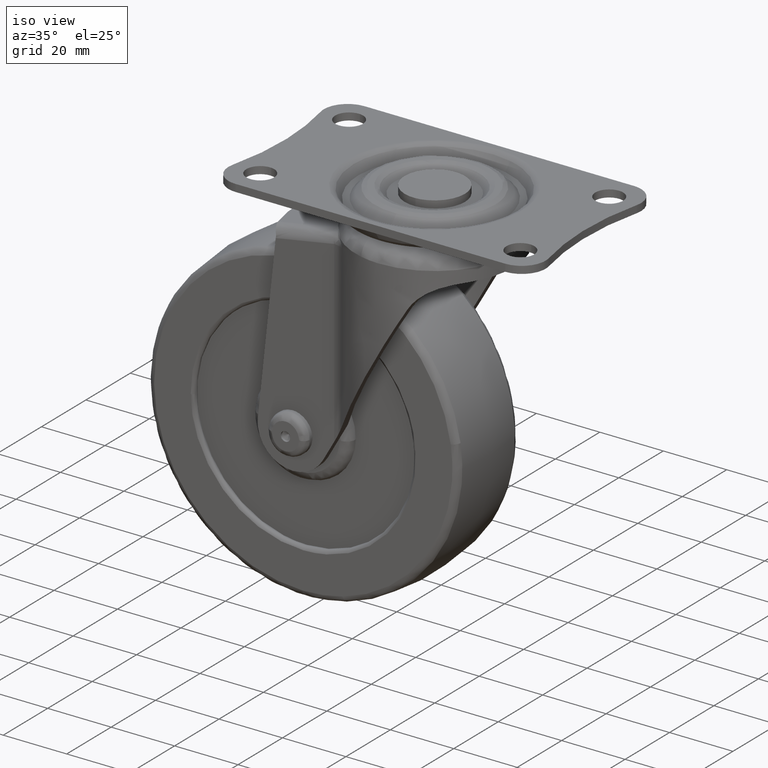
[diagram: clean part render]
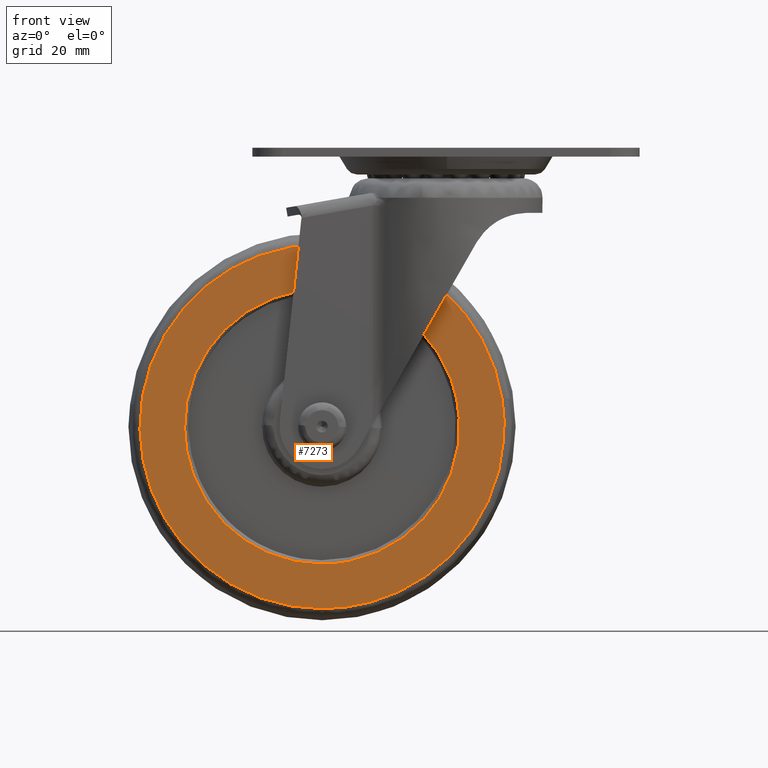
[diagram: tour spotlight — one face highlighted and labeled with its STEP entity id]
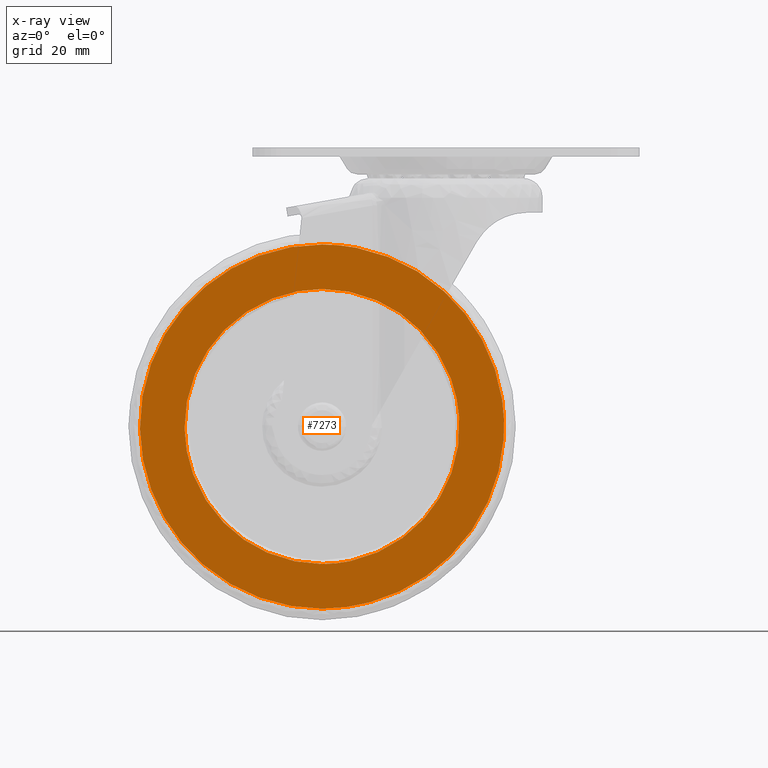
[diagram: x-ray of the same camera — body ghosted, this tour face saturated]
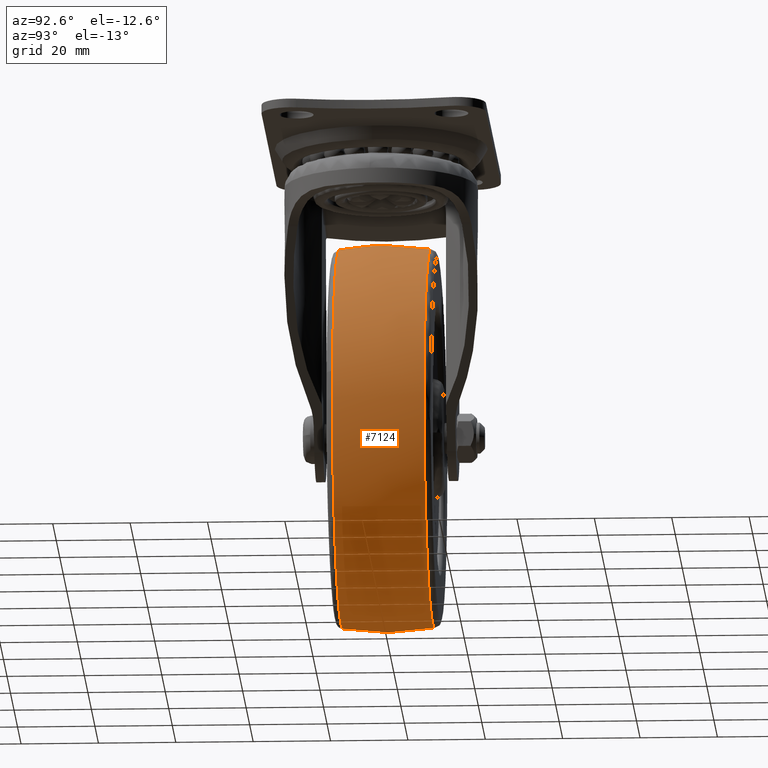
[diagram: tour spotlight — one face highlighted and labeled with its STEP entity id]
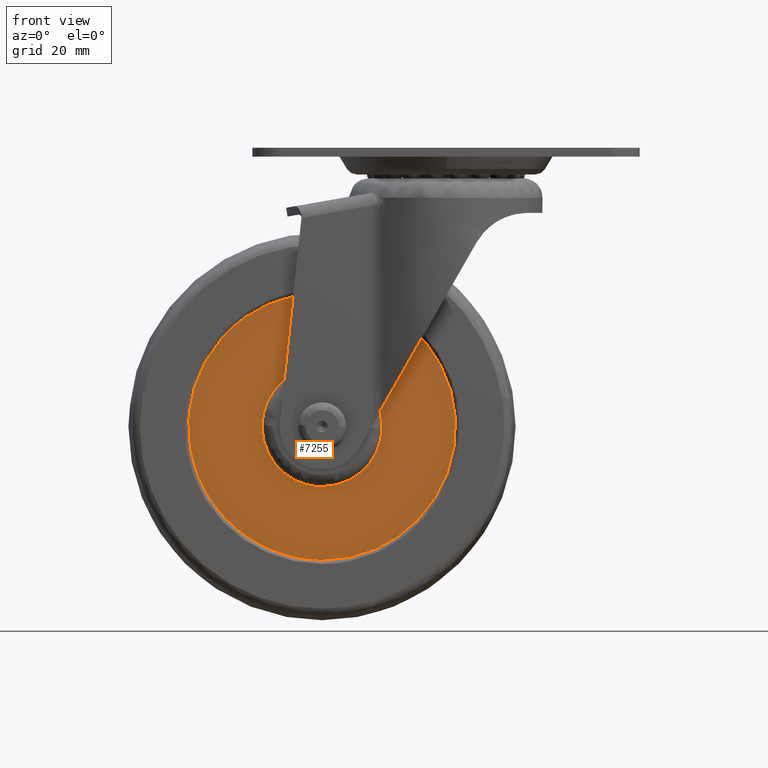
[diagram: tour spotlight — one face highlighted and labeled with its STEP entity id]
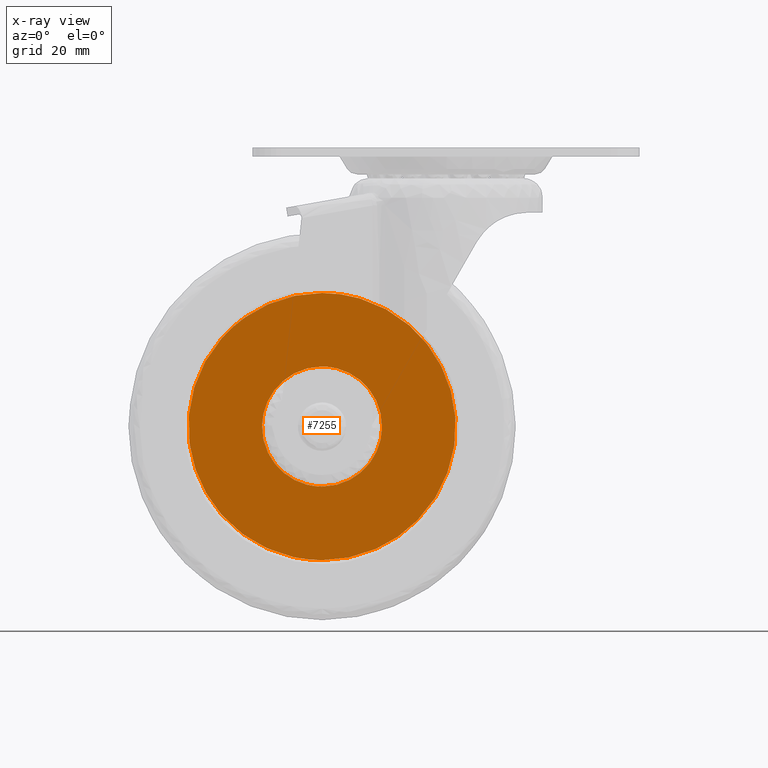
[diagram: x-ray of the same camera — body ghosted, this tour face saturated]
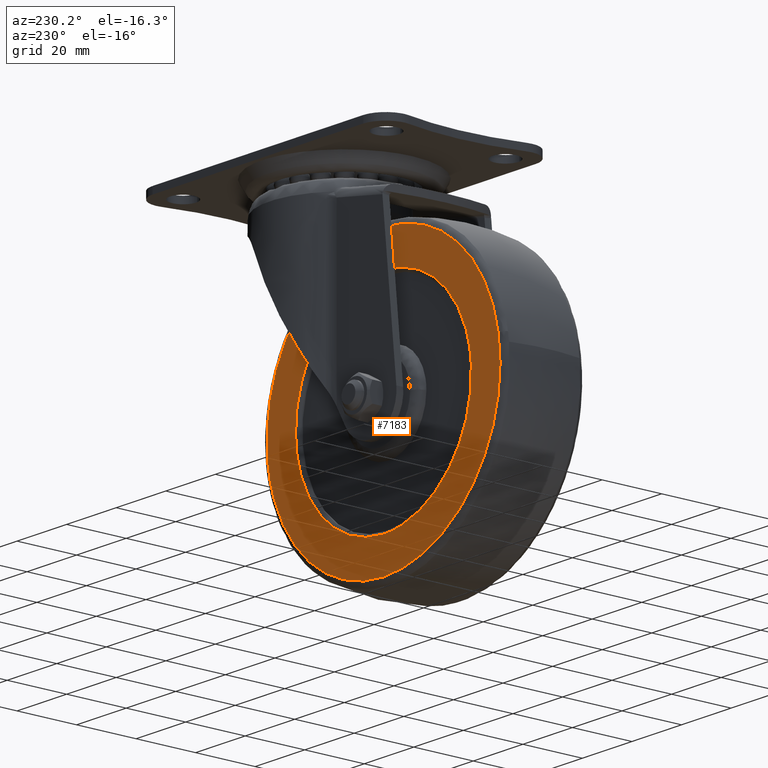
[diagram: tour spotlight — one face highlighted and labeled with its STEP entity id]
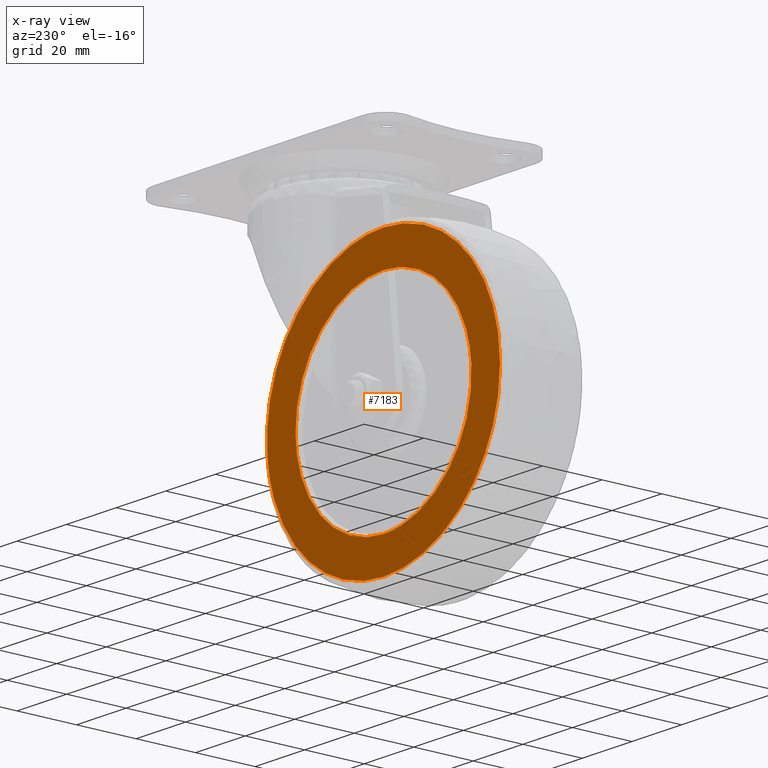
[diagram: x-ray of the same camera — body ghosted, this tour face saturated]
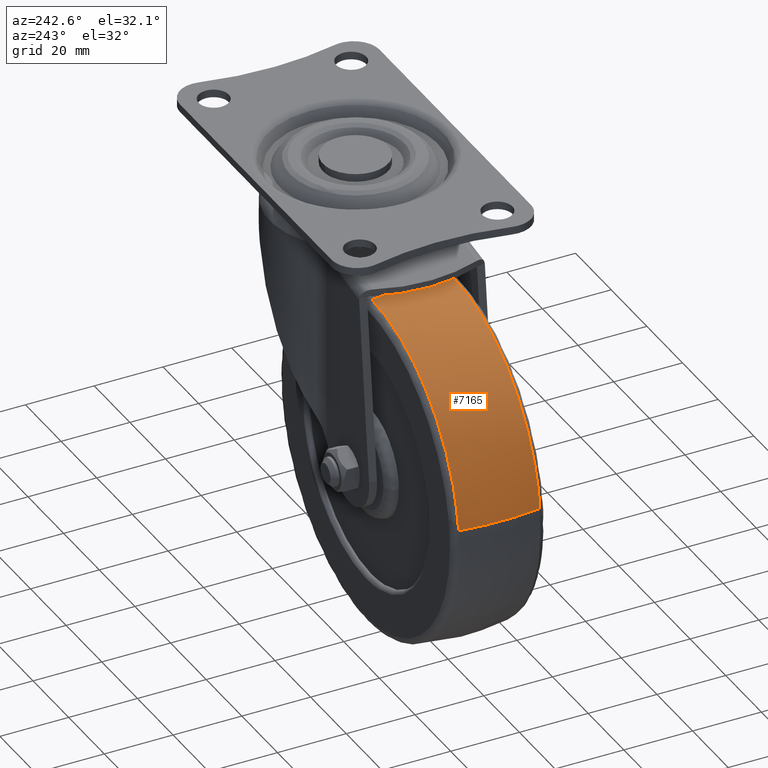
[diagram: tour spotlight — one face highlighted and labeled with its STEP entity id]
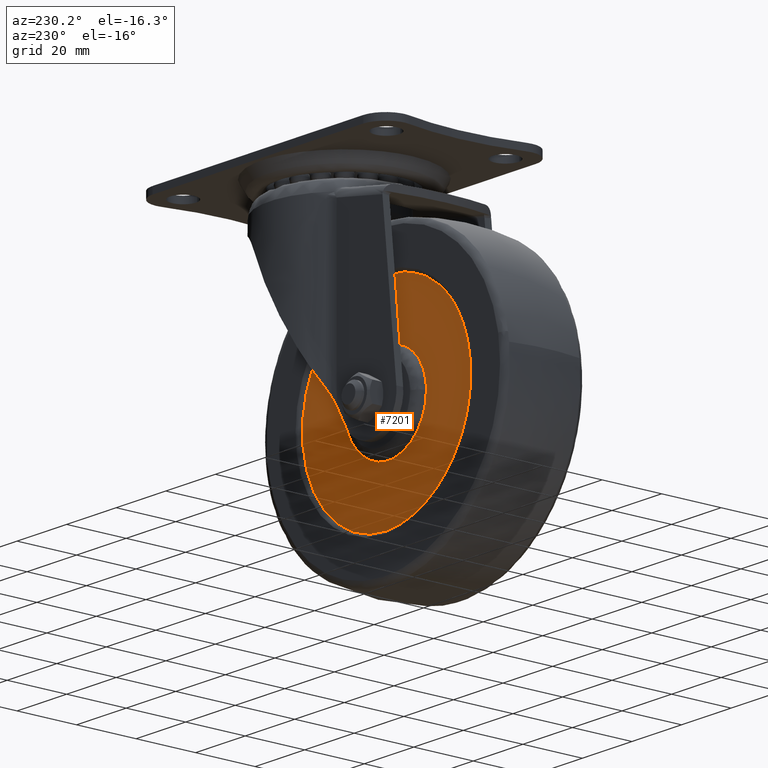
[diagram: tour spotlight — one face highlighted and labeled with its STEP entity id]
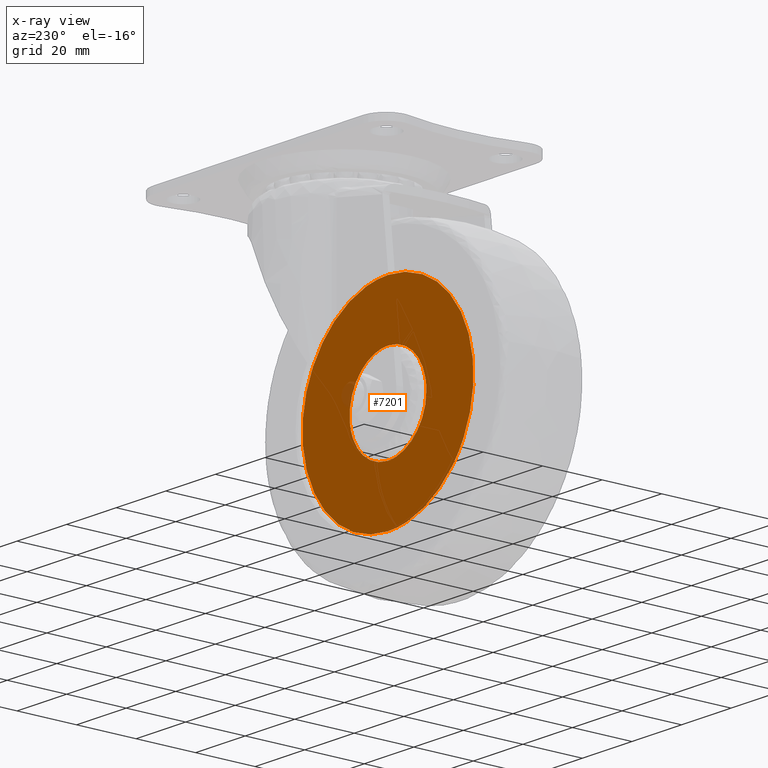
[diagram: x-ray of the same camera — body ghosted, this tour face saturated]
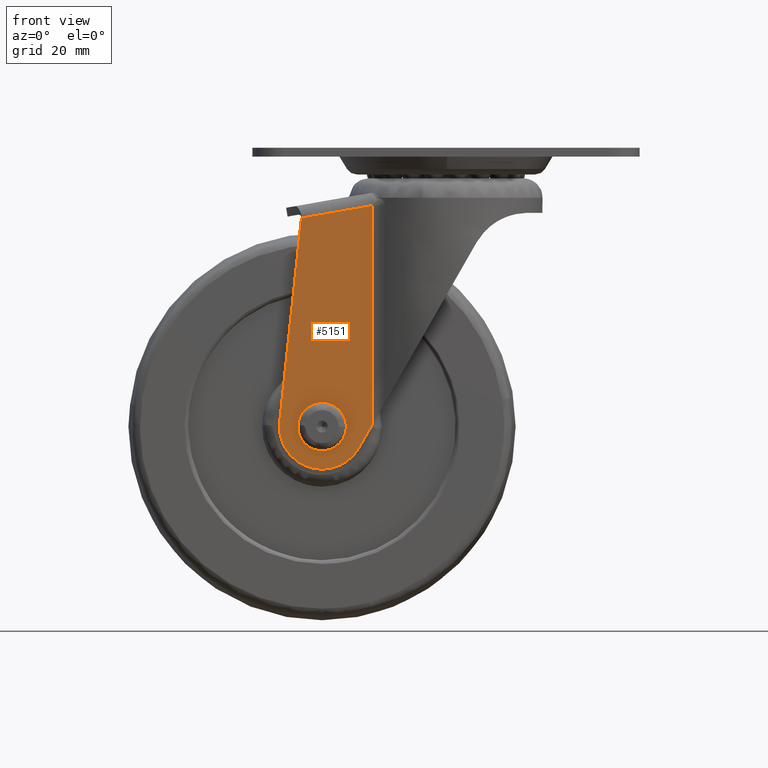
[diagram: tour spotlight — one face highlighted and labeled with its STEP entity id]
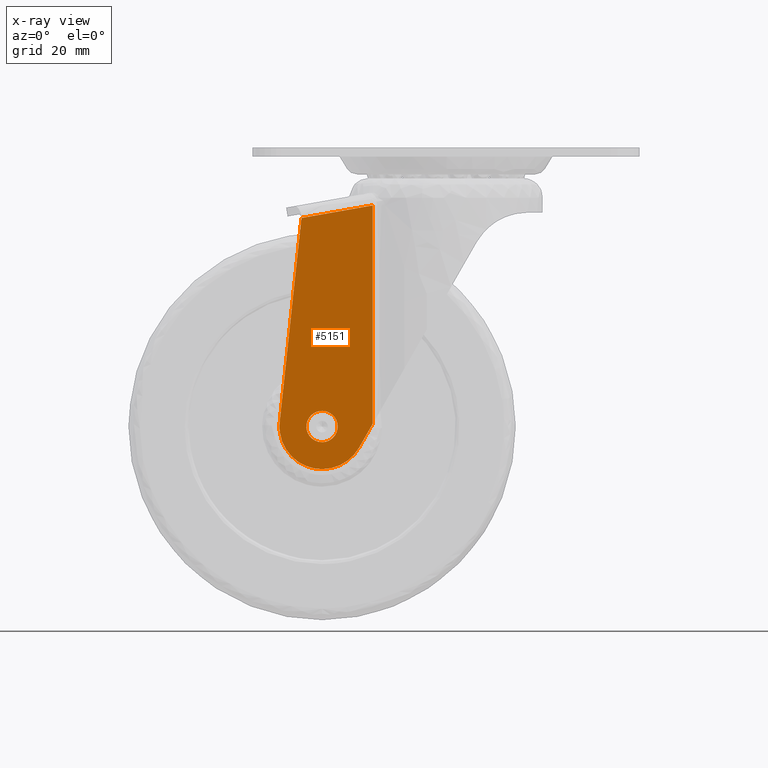
[diagram: x-ray of the same camera — body ghosted, this tour face saturated]
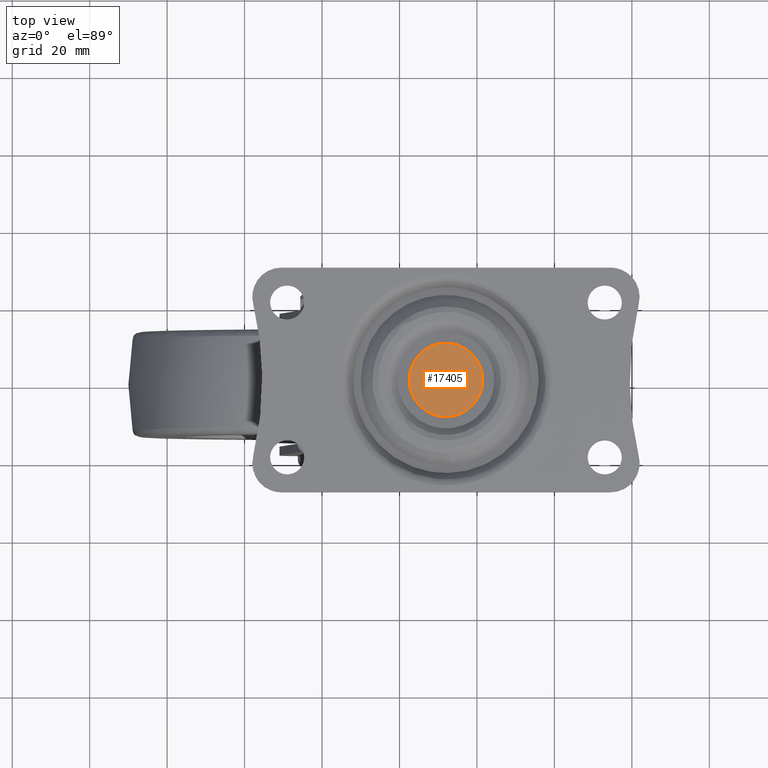
[diagram: tour spotlight — one face highlighted and labeled with its STEP entity id]
A machine part: a face-by-face anatomy tour. The part has 224 B-rep faces; the first image is the clean iso view, then the 8 largest visible faces are spotlighted one at a time (largest first), each with its STEP entity span.

Face 1 — front view, entity #7273. An x-ray twin of the same camera follows (body ghosted, this face saturated) — the face is partly hidden behind the body. In plain terms, the highlighted face is a freeform B-spline surface patch.
Definition (entity closure, byte-faithful):
#5876=CARTESIAN_POINT('',(-35.497213050210902,-13.499999999999501,-0.446078617114239));
#5877=VERTEX_POINT('',#5876);
#5891=CARTESIAN_POINT('',(0.0,-13.499999999999501,-35.500000000000000));
#5892=VERTEX_POINT('',#5891);
#5893=CARTESIAN_POINT('',(0.0,-13.499999999999501,-35.500000000000000));
#5894=CARTESIAN_POINT('',(-35.056689311067558,-13.499999999999503,-35.499999999999993));
#5895=CARTESIAN_POINT('',(-35.497213050210895,-13.499999999999496,-0.446078617114239));
#5903=(BOUNDED_CURVE()B_SPLINE_CURVE(2,(#5893,#5894,#5895),.UNSPECIFIED.,.F.,.U.)B_SPLINE_CURVE_WITH_KNOTS((3,3),(0.500000000000000,0.747784295917550),.UNSPECIFIED.)CURVE()GEOMETRIC_REPRESENTATION_ITEM()RATIONAL_B_SPLINE_CURVE((1.0,0.709702639989135,0.994854295634396))REPRESENTATION_ITEM(''));
#5904=EDGE_CURVE('',#5892,#5877,#5903,.T.);
#5906=CARTESIAN_POINT('',(35.413597382241001,-13.499999999999501,2.475547546653454));
#5907=VERTEX_POINT('',#5906);
#5908=CARTESIAN_POINT('',(35.413597382241001,-13.499999999999496,2.475547546653454));
#5909=CARTESIAN_POINT('',(35.500015999999903,-13.499999999999499,1.239290172101486));
#5910=CARTESIAN_POINT('',(35.500015999999903,-13.499999999999501,0.000015999999905));
#5911=CARTESIAN_POINT('',(35.500015999999889,-13.499999999999501,-35.500000000000000));
#5912=CARTESIAN_POINT('',(0.0,-13.499999999999501,-35.500000000000000));
#5920=(BOUNDED_CURVE()B_SPLINE_CURVE(2,(#5908,#5909,#5910,#5911,#5912),.UNSPECIFIED.,.F.,.U.)B_SPLINE_CURVE_WITH_KNOTS((3,2,3),(0.237833686535101,0.250000000000000,0.500000000000000),.UNSPECIFIED.)CURVE()GEOMETRIC_REPRESENTATION_ITEM()RATIONAL_B_SPLINE_CURVE((0.972879876386996,0.985746277152689,1.0,0.707106781186548,1.0))REPRESENTATION_ITEM(''));
#5921=EDGE_CURVE('',#5907,#5892,#5920,.T.);
#5964=CARTESIAN_POINT('',(0.0,-13.499999999999501,35.500031999999798));
#5965=VERTEX_POINT('',#5964);
#5966=CARTESIAN_POINT('',(0.0,-13.499999999999501,35.500031999999798));
#5967=CARTESIAN_POINT('',(33.105072998547996,-13.499999999999499,35.500031999999806));
#5968=CARTESIAN_POINT('',(35.413597382241001,-13.499999999999496,2.475547546653454));
#5976=(BOUNDED_CURVE()B_SPLINE_CURVE(2,(#5966,#5967,#5968),.UNSPECIFIED.,.F.,.U.)B_SPLINE_CURVE_WITH_KNOTS((3,3),(0.0,0.237833686535101),.UNSPECIFIED.)CURVE()GEOMETRIC_REPRESENTATION_ITEM()RATIONAL_B_SPLINE_CURVE((1.0,0.721360504033858,0.972879876386996))REPRESENTATION_ITEM(''));
#5977=EDGE_CURVE('',#5965,#5907,#5976,.T.);
#5979=CARTESIAN_POINT('',(-35.497213050210895,-13.499999999999494,-0.446078617114239));
#5980=CARTESIAN_POINT('',(-35.500015999999889,-13.499999999999504,-0.223040114666148));
#5981=CARTESIAN_POINT('',(-35.500015999999903,-13.499999999999501,0.000015999999905));
#5982=CARTESIAN_POINT('',(-35.500015999999889,-13.499999999999501,35.500031999999806));
#5983=CARTESIAN_POINT('',(0.0,-13.499999999999501,35.500031999999798));
#5991=(BOUNDED_CURVE()B_SPLINE_CURVE(2,(#5979,#5980,#5981,#5982,#5983),.UNSPECIFIED.,.F.,.U.)B_SPLINE_CURVE_WITH_KNOTS((3,2,3),(0.747784295917550,0.750000000000000,1.0),.UNSPECIFIED.)CURVE()GEOMETRIC_REPRESENTATION_ITEM()RATIONAL_B_SPLINE_CURVE((0.994854295634397,0.997404141197413,1.0,0.707106781186548,1.0))REPRESENTATION_ITEM(''));
#5992=EDGE_CURVE('',#5877,#5965,#5991,.T.);
#6192=CARTESIAN_POINT('',(46.486915931268740,-13.499999999999170,7.063700831069298));
#6193=VERTEX_POINT('',#6192);
#6207=CARTESIAN_POINT('',(12.384016275081150,-13.499999999999170,-45.360375713613479));
#6208=VERTEX_POINT('',#6207);
#6209=CARTESIAN_POINT('',(12.384016275081150,-13.499999999999178,-45.360375713613479));
#6210=CARTESIAN_POINT('',(47.020516745329395,-13.499999999999117,-35.904130527167702));
#6211=CARTESIAN_POINT('',(47.020516745329402,-13.499999999999121,0.000015999999905));
#6212=CARTESIAN_POINT('',(47.020516745329402,-13.499999999999121,3.552012898495331));
#6213=CARTESIAN_POINT('',(46.486915931268740,-13.499999999999169,7.063700831069298));
#6221=(BOUNDED_CURVE()B_SPLINE_CURVE(2,(#6209,#6210,#6211,#6212,#6213),.UNSPECIFIED.,.F.,.U.)B_SPLINE_CURVE_WITH_KNOTS((3,2,3),(0.044901926751259,0.250000000000000,0.275897584625837),.UNSPECIFIED.)CURVE()GEOMETRIC_REPRESENTATION_ITEM()RATIONAL_B_SPLINE_CURVE((0.913685083901422,0.759712660614956,1.0,0.969659092317779,0.945604234430159))REPRESENTATION_ITEM(''));
#6222=EDGE_CURVE('',#6208,#6193,#6221,.T.);
#6291=CARTESIAN_POINT('',(0.0,-13.499999999999121,-47.020500745329500));
#6292=VERTEX_POINT('',#6291);
#6293=CARTESIAN_POINT('',(0.0,-13.499999999999121,-47.020500745329500));
#6294=CARTESIAN_POINT('',(6.303281211679245,-13.499999999999124,-47.020500745329507));
#6295=CARTESIAN_POINT('',(12.384016275081143,-13.499999999999169,-45.360375713613479));
#6303=(BOUNDED_CURVE()B_SPLINE_CURVE(2,(#6293,#6294,#6295),.UNSPECIFIED.,.F.,.U.)B_SPLINE_CURVE_WITH_KNOTS((3,3),(0.0,0.044901926751259),.UNSPECIFIED.)CURVE()GEOMETRIC_REPRESENTATION_ITEM()RATIONAL_B_SPLINE_CURVE((1.0,0.947394120571591,0.913685083901422))REPRESENTATION_ITEM(''));
#6304=EDGE_CURVE('',#6292,#6208,#6303,.T.);
#6306=CARTESIAN_POINT('',(0.0,-13.499999999999121,47.020532745329312));
#6307=VERTEX_POINT('',#6306);
#6308=CARTESIAN_POINT('',(0.0,-13.499999999999121,47.020532745329312));
#6309=CARTESIAN_POINT('',(-47.020516745329395,-13.499999999999121,47.020532745329305));
#6310=CARTESIAN_POINT('',(-47.020516745329402,-13.499999999999121,0.000015999999905));
#6311=CARTESIAN_POINT('',(-47.020516745329395,-13.499999999999121,-47.020500745329500));
#6312=CARTESIAN_POINT('',(0.0,-13.499999999999121,-47.020500745329500));
#6320=(BOUNDED_CURVE()B_SPLINE_CURVE(2,(#6308,#6309,#6310,#6311,#6312),.UNSPECIFIED.,.F.,.U.)B_SPLINE_CURVE_WITH_KNOTS((3,2,3),(0.500000000000000,0.750000000000000,1.0),.UNSPECIFIED.)CURVE()GEOMETRIC_REPRESENTATION_ITEM()RATIONAL_B_SPLINE_CURVE((1.0,0.707106781186548,1.0,0.707106781186548,1.0))REPRESENTATION_ITEM(''));
#6321=EDGE_CURVE('',#6307,#6292,#6320,.T.);
#6323=CARTESIAN_POINT('',(46.486915931268740,-13.499999999999170,7.063700831069298));
#6324=CARTESIAN_POINT('',(40.415477066212858,-13.499999999999121,47.020532745329291));
#6325=CARTESIAN_POINT('',(0.0,-13.499999999999121,47.020532745329312));
#6333=(BOUNDED_CURVE()B_SPLINE_CURVE(2,(#6323,#6324,#6325),.UNSPECIFIED.,.F.,.U.)B_SPLINE_CURVE_WITH_KNOTS((3,3),(0.275897584625837,0.500000000000000),.UNSPECIFIED.)CURVE()GEOMETRIC_REPRESENTATION_ITEM()RATIONAL_B_SPLINE_CURVE((0.945604234430159,0.737447688868768,1.0))REPRESENTATION_ITEM(''));
#6334=EDGE_CURVE('',#6193,#6307,#6333,.T.);
#7256=CARTESIAN_POINT('',(-51.717832451216772,-13.499999999999501,-51.717850185918138));
#7257=CARTESIAN_POINT('',(-51.717832451216772,-13.499999999999501,51.717884708295017));
#7258=CARTESIAN_POINT('',(51.717178118292573,-13.499999999999501,-51.717850185918138));
#7259=CARTESIAN_POINT('',(51.717178118292573,-13.499999999999501,51.717884708295017));
#7260=B_SPLINE_SURFACE_WITH_KNOTS('',1,1,((#7256,#7258),(#7257,#7259)),.UNSPECIFIED.,.F.,.F.,.U.,(2,2),(2,2),(0.0,103.435734894213200),(0.0,103.435010569509300),.UNSPECIFIED.);
#7261=ORIENTED_EDGE('',*,*,#6304,.T.);
#7262=ORIENTED_EDGE('',*,*,#6222,.T.);
#7263=ORIENTED_EDGE('',*,*,#6334,.T.);
#7264=ORIENTED_EDGE('',*,*,#6321,.T.);
#7265=EDGE_LOOP('',(#7261,#7262,#7263,#7264));
#7266=FACE_OUTER_BOUND('',#7265,.T.);
#7267=ORIENTED_EDGE('',*,*,#5904,.T.);
#7268=ORIENTED_EDGE('',*,*,#5992,.T.);
#7269=ORIENTED_EDGE('',*,*,#5977,.T.);
#7270=ORIENTED_EDGE('',*,*,#5921,.T.);
#7271=EDGE_LOOP('',(#7267,#7268,#7269,#7270));
#7272=FACE_BOUND('',#7271,.T.);
#7273=ADVANCED_FACE('',(#7266,#7272),#7260,.F.);

Face 2 — auxiliary view, entity #7124. In plain terms, the highlighted face is a freeform B-spline surface patch.
Definition (entity closure, byte-faithful):
#6173=CARTESIAN_POINT('',(12.903178560643820,-11.838232933250300,-47.261972426486572));
#6174=VERTEX_POINT('',#6173);
#6175=CARTESIAN_POINT('',(48.435740678916673,-11.838213538971610,7.359824665406185));
#6176=VERTEX_POINT('',#6175);
#6177=CARTESIAN_POINT('',(12.903178560643816,-11.838232933250300,-47.261972426486572));
#6178=CARTESIAN_POINT('',(48.991710667833047,-11.838229491721327,-37.409302717240465));
#6179=CARTESIAN_POINT('',(48.991710617222481,-11.838216162407720,0.000019104352251));
#6180=CARTESIAN_POINT('',(48.991710612215577,-11.838214843739459,3.700921251908450));
#6181=CARTESIAN_POINT('',(48.435740678916673,-11.838213538971612,7.359824665406185));
#6189=(BOUNDED_CURVE()B_SPLINE_CURVE(2,(#6177,#6178,#6179,#6180,#6181),.UNSPECIFIED.,.F.,.U.)B_SPLINE_CURVE_WITH_KNOTS((3,2,3),(0.044901926657986,0.250000000000000,0.275897572905591),.UNSPECIFIED.)CURVE()GEOMETRIC_REPRESENTATION_ITEM()RATIONAL_B_SPLINE_CURVE((0.913685084041468,0.759712660505680,1.0,0.969659106048901,0.945604256202758))REPRESENTATION_ITEM(''));
#6190=EDGE_CURVE('',#6174,#6176,#6189,.T.);
#6275=CARTESIAN_POINT('',(0.0,-11.838233890881041,-48.991695229283202));
#6276=VERTEX_POINT('',#6275);
#6277=CARTESIAN_POINT('',(0.0,-11.838233890881041,-48.991695229283202));
#6278=CARTESIAN_POINT('',(6.567527145123980,-11.838233722768766,-48.991694283617548));
#6279=CARTESIAN_POINT('',(12.903178560643816,-11.838232933250300,-47.261972426486572));
#6287=(BOUNDED_CURVE()B_SPLINE_CURVE(2,(#6277,#6278,#6279),.UNSPECIFIED.,.F.,.U.)B_SPLINE_CURVE_WITH_KNOTS((3,3),(0.0,0.044901926657986),.UNSPECIFIED.)CURVE()GEOMETRIC_REPRESENTATION_ITEM()RATIONAL_B_SPLINE_CURVE((1.0,0.947394120680868,0.913685084041468))REPRESENTATION_ITEM(''));
#6288=EDGE_CURVE('',#6276,#6174,#6287,.T.);
#6337=CARTESIAN_POINT('',(0.0,-11.838198690109831,48.991733269337402));
#6338=VERTEX_POINT('',#6337);
#6339=CARTESIAN_POINT('',(48.435740678916673,-11.838213538971608,7.359824665406185));
#6340=CARTESIAN_POINT('',(42.109778009583387,-11.838198690109833,48.991733269337402));
#6341=CARTESIAN_POINT('',(0.0,-11.838198690109831,48.991733269337402));
#6349=(BOUNDED_CURVE()B_SPLINE_CURVE(2,(#6339,#6340,#6341),.UNSPECIFIED.,.F.,.U.)B_SPLINE_CURVE_WITH_KNOTS((3,3),(0.275897572905591,0.500000000000000),.UNSPECIFIED.)CURVE()GEOMETRIC_REPRESENTATION_ITEM()RATIONAL_B_SPLINE_CURVE((0.945604256202758,0.737447675137646,1.0))REPRESENTATION_ITEM(''));
#6350=EDGE_CURVE('',#6176,#6338,#6349,.T.);
#6352=CARTESIAN_POINT('',(-48.664044379754571,-11.838218219392839,5.656765708079123));
#6353=VERTEX_POINT('',#6352);
#6367=CARTESIAN_POINT('',(-48.664044379754571,-11.838218219392843,5.656765708079123));
#6368=CARTESIAN_POINT('',(-48.991713831446368,-11.838218623577283,2.837881196718123));
#6369=CARTESIAN_POINT('',(-48.991713754085467,-11.838219077465959,0.000016293485072));
#6370=CARTESIAN_POINT('',(-48.991712418559189,-11.838226913210059,-48.991695091040754));
#6371=CARTESIAN_POINT('',(0.0,-11.838233890881041,-48.991695229283202));
#6379=(BOUNDED_CURVE()B_SPLINE_CURVE(2,(#6367,#6368,#6369,#6370,#6371),.UNSPECIFIED.,.F.,.U.)B_SPLINE_CURVE_WITH_KNOTS((3,2,3),(0.730000141760548,0.750000000000000,1.0),.UNSPECIFIED.)CURVE()GEOMETRIC_REPRESENTATION_ITEM()RATIONAL_B_SPLINE_CURVE((0.956886397209974,0.976568708577737,1.0,0.707106781186548,1.0))REPRESENTATION_ITEM(''));
#6380=EDGE_CURVE('',#6353,#6276,#6379,.T.);
#6408=CARTESIAN_POINT('',(48.646940307461662,11.838229362540289,-5.801928984232381));
#6409=VERTEX_POINT('',#6408);
#6410=CARTESIAN_POINT('',(0.0,11.838221569377120,48.991727220530692));
#6411=VERTEX_POINT('',#6410);
#6412=CARTESIAN_POINT('',(48.646940307461662,11.838229362540288,-5.801928984232381));
#6413=CARTESIAN_POINT('',(48.991706738956992,11.838228850553850,-2.911198820914197));
#6414=CARTESIAN_POINT('',(48.991706738956992,11.838228442155181,0.000018240786803));
#6415=CARTESIAN_POINT('',(48.991706738956992,11.838221569377120,48.991727220530699));
#6416=CARTESIAN_POINT('',(0.0,11.838221569377120,48.991727220530692));
#6424=(BOUNDED_CURVE()B_SPLINE_CURVE(2,(#6412,#6413,#6414,#6415,#6416),.UNSPECIFIED.,.F.,.U.)B_SPLINE_CURVE_WITH_KNOTS((3,2,3),(0.229495609663611,0.250000000000000,0.500000000000000),.UNSPECIFIED.)CURVE()GEOMETRIC_REPRESENTATION_ITEM()RATIONAL_B_SPLINE_CURVE((0.955895740204282,0.975977612458270,1.0,0.707106781186548,1.0))REPRESENTATION_ITEM(''));
#6425=EDGE_CURVE('',#6409,#6411,#6424,.T.);
#6534=CARTESIAN_POINT('',(0.0,11.838235314933240,-48.991690738957097));
#6535=VERTEX_POINT('',#6534);
#6536=CARTESIAN_POINT('',(0.0,11.838235314933240,-48.991690738957097));
#6537=CARTESIAN_POINT('',(43.495851170952356,11.838235314933240,-48.991690738957097));
#6538=CARTESIAN_POINT('',(48.646940307461669,11.838229362540289,-5.801928984232381));
#6546=(BOUNDED_CURVE()B_SPLINE_CURVE(2,(#6536,#6537,#6538),.UNSPECIFIED.,.F.,.U.)B_SPLINE_CURVE_WITH_KNOTS((3,3),(0.0,0.229495609663611),.UNSPECIFIED.)CURVE()GEOMETRIC_REPRESENTATION_ITEM()RATIONAL_B_SPLINE_CURVE((1.0,0.731129168728277,0.955895740204282))REPRESENTATION_ITEM(''));
#6547=EDGE_CURVE('',#6535,#6409,#6546,.T.);
#6549=CARTESIAN_POINT('',(-48.664038307687733,11.838241395925079,5.656765115927742));
#6550=VERTEX_POINT('',#6549);
#6551=CARTESIAN_POINT('',(-48.664038307687733,11.838241395925085,5.656765115927742));
#6552=CARTESIAN_POINT('',(-48.991707783617201,11.838241239089795,2.837880812213375));
#6553=CARTESIAN_POINT('',(-48.991707752560032,11.838241062967819,0.000016117821980));
#6554=CARTESIAN_POINT('',(-48.991707216401828,11.838238022471899,-48.991690683458501));
#6555=CARTESIAN_POINT('',(0.0,11.838235314933240,-48.991690738957097));
#6563=(BOUNDED_CURVE()B_SPLINE_CURVE(2,(#6551,#6552,#6553,#6554,#6555),.UNSPECIFIED.,.F.,.U.)B_SPLINE_CURVE_WITH_KNOTS((3,2,3),(0.730000141370698,0.750000000000000,1.0),.UNSPECIFIED.)CURVE()GEOMETRIC_REPRESENTATION_ITEM()RATIONAL_B_SPLINE_CURVE((0.956886396442654,0.976568708120999,1.0,0.707106781186548,1.0))REPRESENTATION_ITEM(''));
#6564=EDGE_CURVE('',#6550,#6535,#6563,.T.);
#7032=CARTESIAN_POINT('',(-48.448963372802993,-13.037382184364986,5.631804449902567));
#7033=CARTESIAN_POINT('',(-49.665582081654186,-6.576224160731073,5.773226241318850));
#7034=CARTESIAN_POINT('',(-49.665582081654193,0.0,5.773226241318853));
#7035=CARTESIAN_POINT('',(-49.665582081654186,6.576226811984332,5.773226241318851));
#7036=CARTESIAN_POINT('',(-48.448962400407424,13.037387348513866,5.631804336869683));
#7037=CARTESIAN_POINT('',(-48.775189318378487,-13.037382184364992,2.825358677118191));
#7038=CARTESIAN_POINT('',(-50.000000000000007,-6.576224160731075,2.896306836182982));
#7039=CARTESIAN_POINT('',(-50.0,0.0,2.896306836182981));
#7040=CARTESIAN_POINT('',(-50.0,6.576226811984331,2.896306836182982));
#7041=CARTESIAN_POINT('',(-48.775188339435395,13.037387348513869,2.825358620412112));
#7042=CARTESIAN_POINT('',(-48.775189318378509,-13.037382184365001,0.000015999999905));
#7043=CARTESIAN_POINT('',(-50.000000000000007,-6.576224160731075,0.000015999999905));
#7044=CARTESIAN_POINT('',(-50.0,0.0,0.000015999999905));
#7045=CARTESIAN_POINT('',(-50.0,6.576226811984331,0.000015999999905));
#7046=CARTESIAN_POINT('',(-48.775188339435388,13.037387348513862,0.000015999999905));
#7047=CARTESIAN_POINT('',(-48.775189318378501,-13.037382184364995,-48.775173318378599));
#7048=CARTESIAN_POINT('',(-50.000000000000007,-6.576224160731075,-49.999984000000111));
#7049=CARTESIAN_POINT('',(-50.0,0.0,-49.999984000000111));
#7050=CARTESIAN_POINT('',(-50.0,6.576226811984331,-49.999984000000104));
#7051=CARTESIAN_POINT('',(-48.775188339435395,13.037387348513860,-48.775172339435507));
#7052=CARTESIAN_POINT('',(0.0,-13.037382184365001,-48.775173318378592));
#7053=CARTESIAN_POINT('',(0.0,-6.576224160731075,-49.999984000000097));
#7054=CARTESIAN_POINT('',(0.0,0.0,-49.999984000000097));
#7055=CARTESIAN_POINT('',(0.0,6.576226811984331,-49.999984000000090));
#7056=CARTESIAN_POINT('',(0.0,13.037387348513862,-48.775172339435478));
#7057=CARTESIAN_POINT('',(48.775189318378501,-13.037382184364995,-48.775173318378599));
#7058=CARTESIAN_POINT('',(50.000000000000007,-6.576224160731075,-49.999984000000111));
#7059=CARTESIAN_POINT('',(50.0,0.0,-49.999984000000111));
#7060=CARTESIAN_POINT('',(50.0,6.576226811984331,-49.999984000000104));
#7061=CARTESIAN_POINT('',(48.775188339435395,13.037387348513860,-48.775172339435507));
#7062=CARTESIAN_POINT('',(48.775189318378509,-13.037382184365001,0.000015999999905));
#7063=CARTESIAN_POINT('',(50.000000000000007,-6.576224160731075,0.000015999999905));
#7064=CARTESIAN_POINT('',(50.0,0.0,0.000015999999905));
#7065=CARTESIAN_POINT('',(50.0,6.576226811984331,0.000015999999905));
#7066=CARTESIAN_POINT('',(48.775188339435388,13.037387348513862,0.000015999999905));
#7067=CARTESIAN_POINT('',(48.775189318378501,-13.037382184364995,48.775205318378397));
#7068=CARTESIAN_POINT('',(50.000000000000007,-6.576224160731075,50.000015999999910));
#7069=CARTESIAN_POINT('',(50.0,0.0,50.000015999999910));
#7070=CARTESIAN_POINT('',(50.0,6.576226811984331,50.000015999999910));
#7071=CARTESIAN_POINT('',(48.775188339435395,13.037387348513860,48.775204339435298));
#7072=CARTESIAN_POINT('',(0.0,-13.037382184365001,48.775205318378404));
#7073=CARTESIAN_POINT('',(0.0,-6.576224160731075,50.000015999999917));
#7074=CARTESIAN_POINT('',(0.0,0.0,50.000015999999910));
#7075=CARTESIAN_POINT('',(0.0,6.576226811984331,50.000015999999910));
#7076=CARTESIAN_POINT('',(0.0,13.037387348513862,48.775204339435305));
#7084=(BOUNDED_SURFACE()B_SPLINE_SURFACE(2,2,((#7032,#7037,#7042,#7047,#7052,#7057,#7062,#7067,#7072),(#7033,#7038,#7043,#7048,#7053,#7058,#7063,#7068,#7073),(#7034,#7039,#7044,#7049,#7054,#7059,#7064,#7069,#7074),(#7035,#7040,#7045,#7050,#7055,#7060,#7065,#7070,#7075),(#7036,#7041,#7046,#7051,#7056,#7061,#7066,#7071,#7076)),.UNSPECIFIED.,.F.,.F.,.U.)B_SPLINE_SURFACE_WITH_KNOTS((3,2,3),(3,2,2,2,3),(0.0,13.443626725657429,26.887258707431641),(0.0,6.627415615382596,89.470128090001623,172.312840564620590,255.155553039239690),.UNSPECIFIED.)GEOMETRIC_REPRESENTATION_ITEM()RATIONAL_B_SPLINE_SURFACE(((0.907871500364435,0.926545727707832,0.948776949852297,0.670886615074048,0.948776949852297,0.670886615074048,0.948776949852297,0.670886615074048,0.948776949852297),(0.927970599554410,0.947058250105299,0.969781642715315,0.685739175834229,0.969781642715315,0.685739175834229,0.969781642715315,0.685739175834229,0.969781642715315),(0.956886126402807,0.976568547383107,1.0,0.707106781186548,1.0,0.707106781186548,1.0,0.707106781186548,1.0),(0.927970588249173,0.947058238567522,0.969781630900705,0.685739167480038,0.969781630900705,0.685739167480038,0.969781630900705,0.685739167480038,0.969781630900705),(0.907871484647961,0.926545711668083,0.948776933427695,0.670886603460101,0.948776933427695,0.670886603460101,0.948776933427695,0.670886603460101,0.948776933427695)))REPRESENTATION_ITEM('')SURFACE());
#7085=ORIENTED_EDGE('',*,*,#6380,.F.);
#7086=CARTESIAN_POINT('',(-48.664044379754571,-11.838218219392834,5.656765708079123));
#7087=CARTESIAN_POINT('',(-49.665586168255274,-5.962048126488737,5.773186652178438));
#7088=CARTESIAN_POINT('',(-49.665585649139409,-0.000000176931268,5.773186620460650));
#7089=CARTESIAN_POINT('',(-49.665585130022492,5.962059796363208,5.773186588742801));
#7090=CARTESIAN_POINT('',(-48.664038307687726,11.838241395925083,5.656765115927743));
#7098=(BOUNDED_CURVE()B_SPLINE_CURVE(2,(#7086,#7087,#7088,#7089,#7090),.UNSPECIFIED.,.F.,.U.)B_SPLINE_CURVE_WITH_KNOTS((3,2,3),(0.430697674673160,0.500000000000000,0.569302461249900),.UNSPECIFIED.)CURVE()GEOMETRIC_REPRESENTATION_ITEM()RATIONAL_B_SPLINE_CURVE((0.911595329465538,0.930596918487242,0.956886118190660,0.930596866926079,0.911595254929708))REPRESENTATION_ITEM(''));
#7099=EDGE_CURVE('',#6353,#6550,#7098,.T.);
#7100=ORIENTED_EDGE('',*,*,#7099,.T.);
#7101=ORIENTED_EDGE('',*,*,#6564,.T.);
#7102=ORIENTED_EDGE('',*,*,#6547,.T.);
#7103=ORIENTED_EDGE('',*,*,#6425,.T.);
#7104=CARTESIAN_POINT('',(0.0,-11.838198690109836,48.991733269337395));
#7105=CARTESIAN_POINT('',(0.0,-5.962038147270108,50.000015488166333));
#7106=CARTESIAN_POINT('',(0.0,-0.000000176930477,50.000014968861670));
#7107=CARTESIAN_POINT('',(0.0,5.962049665245814,50.000014449555984));
#7108=CARTESIAN_POINT('',(0.0,11.838221569377122,48.991727220530692));
#7116=(BOUNDED_CURVE()B_SPLINE_CURVE(2,(#7104,#7105,#7106,#7107,#7108),.UNSPECIFIED.,.F.,.U.)B_SPLINE_CURVE_WITH_KNOTS((3,2,3),(0.430697787483869,0.500000000000000,0.569302346722037),.UNSPECIFIED.)CURVE()GEOMETRIC_REPRESENTATION_ITEM()RATIONAL_B_SPLINE_CURVE((0.952668634226863,0.972526347273778,1.0,0.972526294070188,0.952668557316725))REPRESENTATION_ITEM(''));
#7117=EDGE_CURVE('',#6338,#6411,#7116,.T.);
#7118=ORIENTED_EDGE('',*,*,#7117,.F.);
#7119=ORIENTED_EDGE('',*,*,#6350,.F.);
#7120=ORIENTED_EDGE('',*,*,#6190,.F.);
#7121=ORIENTED_EDGE('',*,*,#6288,.F.);
#7122=EDGE_LOOP('',(#7085,#7100,#7101,#7102,#7103,#7118,#7119,#7120,#7121));
#7123=FACE_OUTER_BOUND('',#7122,.T.);
#7124=ADVANCED_FACE('',(#7123),#7084,.T.);

Face 3 — front view, entity #7255. An x-ray twin of the same camera follows (body ghosted, this face saturated) — the face is partly hidden behind the body. In plain terms, the highlighted face is a freeform B-spline surface patch.
Definition (entity closure, byte-faithful):
#5695=CARTESIAN_POINT('',(24.607152335484400,-11.988542877998160,-24.181364397705121));
#5696=VERTEX_POINT('',#5695);
#5702=CARTESIAN_POINT('',(0.0,-11.988542877998160,-34.499999999999993));
#5703=VERTEX_POINT('',#5702);
#5704=CARTESIAN_POINT('',(0.0,-11.988542877998160,-34.499999999999993));
#5705=CARTESIAN_POINT('',(14.467058087457971,-11.988542877998166,-34.500000000000000));
#5706=CARTESIAN_POINT('',(24.607152335484400,-11.988542877998164,-24.181364397705121));
#5714=(BOUNDED_CURVE()B_SPLINE_CURVE(2,(#5704,#5705,#5706),.UNSPECIFIED.,.F.,.U.)B_SPLINE_CURVE_WITH_KNOTS((3,3),(0.0,0.126316762928242),.UNSPECIFIED.)CURVE()GEOMETRIC_REPRESENTATION_ITEM()RATIONAL_B_SPLINE_CURVE((1.0,0.852010706863405,0.853569641383238))REPRESENTATION_ITEM(''));
#5715=EDGE_CURVE('',#5703,#5696,#5714,.T.);
#5717=CARTESIAN_POINT('',(-25.949866359321430,-11.988542877998160,22.734473106638330));
#5718=VERTEX_POINT('',#5717);
#5719=CARTESIAN_POINT('',(-25.949866359321430,-11.988542877998162,22.734473106638330));
#5720=CARTESIAN_POINT('',(-34.500015999999889,-11.988542877998164,12.975047601685013));
#5721=CARTESIAN_POINT('',(-34.500015999999903,-11.988542877998160,0.000015999999905));
#5722=CARTESIAN_POINT('',(-34.500015999999896,-11.988542877998160,-34.499999999999993));
#5723=CARTESIAN_POINT('',(0.0,-11.988542877998160,-34.499999999999993));
#5731=(BOUNDED_CURVE()B_SPLINE_CURVE(2,(#5719,#5720,#5721,#5722,#5723),.UNSPECIFIED.,.F.,.U.)B_SPLINE_CURVE_WITH_KNOTS((3,2,3),(0.634954741476320,0.750000000000000,1.0),.UNSPECIFIED.)CURVE()GEOMETRIC_REPRESENTATION_ITEM()RATIONAL_B_SPLINE_CURVE((0.854482184306262,0.865216095687094,1.0,0.707106781186547,1.0))REPRESENTATION_ITEM(''));
#5732=EDGE_CURVE('',#5718,#5703,#5731,.T.);
#5780=CARTESIAN_POINT('',(0.0,-11.988542877998160,34.500031999999798));
#5781=VERTEX_POINT('',#5780);
#5782=CARTESIAN_POINT('',(0.0,-11.988542877998160,34.500031999999798));
#5783=CARTESIAN_POINT('',(-15.642160327507519,-11.988542877998158,34.500031999999798));
#5784=CARTESIAN_POINT('',(-25.949866359321430,-11.988542877998162,22.734473106638330));
#5792=(BOUNDED_CURVE()B_SPLINE_CURVE(2,(#5782,#5783,#5784),.UNSPECIFIED.,.F.,.U.)B_SPLINE_CURVE_WITH_KNOTS((3,3),(0.500000000000000,0.634954741476320),.UNSPECIFIED.)CURVE()GEOMETRIC_REPRESENTATION_ITEM()RATIONAL_B_SPLINE_CURVE((1.0,0.841890685499453,0.854482184306262))REPRESENTATION_ITEM(''));
#5793=EDGE_CURVE('',#5781,#5718,#5792,.T.);
#5795=CARTESIAN_POINT('',(24.607152335484400,-11.988542877998164,-24.181364397705121));
#5796=CARTESIAN_POINT('',(34.500015999999889,-11.988542877998158,-14.114312482759992));
#5797=CARTESIAN_POINT('',(34.500015999999903,-11.988542877998160,0.000015999999905));
#5798=CARTESIAN_POINT('',(34.500015999999896,-11.988542877998160,34.500031999999798));
#5799=CARTESIAN_POINT('',(0.0,-11.988542877998160,34.500031999999798));
#5807=(BOUNDED_CURVE()B_SPLINE_CURVE(2,(#5795,#5796,#5797,#5798,#5799),.UNSPECIFIED.,.F.,.U.)B_SPLINE_CURVE_WITH_KNOTS((3,2,3),(0.126316762928242,0.250000000000000,0.500000000000000),.UNSPECIFIED.)CURVE()GEOMETRIC_REPRESENTATION_ITEM()RATIONAL_B_SPLINE_CURVE((0.853569641383238,0.855096074323142,1.0,0.707106781186547,1.0))REPRESENTATION_ITEM(''));
#5808=EDGE_CURVE('',#5696,#5781,#5807,.T.);
#6866=CARTESIAN_POINT('',(-15.495083063118710,-11.988542879866779,0.389531929646393));
#6867=VERTEX_POINT('',#6866);
#6881=CARTESIAN_POINT('',(0.0,-11.988542877998160,-15.499962122312899));
#6882=VERTEX_POINT('',#6881);
#6883=CARTESIAN_POINT('',(-15.495083063118710,-11.988542879866779,0.389531929646393));
#6884=CARTESIAN_POINT('',(-15.499978122312799,-11.988542877998157,0.194804723037666));
#6885=CARTESIAN_POINT('',(-15.499978122312800,-11.988542877998160,0.000015999999905));
#6886=CARTESIAN_POINT('',(-15.499978122312799,-11.988542877998158,-15.499962122312894));
#6887=CARTESIAN_POINT('',(0.0,-11.988542877998160,-15.499962122312899));
#6895=(BOUNDED_CURVE()B_SPLINE_CURVE(2,(#6883,#6884,#6885,#6886,#6887),.UNSPECIFIED.,.F.,.U.)B_SPLINE_CURVE_WITH_KNOTS((3,2,3),(0.745579891768386,0.750000000000000,1.0),.UNSPECIFIED.)CURVE()GEOMETRIC_REPRESENTATION_ITEM()RATIONAL_B_SPLINE_CURVE((0.989826157678363,0.994821521090155,1.0,0.707106781186548,1.0))REPRESENTATION_ITEM(''));
#6896=EDGE_CURVE('',#6867,#6882,#6895,.T.);
#6898=CARTESIAN_POINT('',(15.495083063118710,-11.988542879866779,-0.389499929646581));
#6899=VERTEX_POINT('',#6898);
#6900=CARTESIAN_POINT('',(0.0,-11.988542877998160,-15.499962122312899));
#6901=CARTESIAN_POINT('',(15.115235746040684,-11.988542877998160,-15.499962122312891));
#6902=CARTESIAN_POINT('',(15.495083063118706,-11.988542879866776,-0.389499929646581));
#6910=(BOUNDED_CURVE()B_SPLINE_CURVE(2,(#6900,#6901,#6902),.UNSPECIFIED.,.F.,.U.)B_SPLINE_CURVE_WITH_KNOTS((3,3),(0.0,0.245579891768386),.UNSPECIFIED.)CURVE()GEOMETRIC_REPRESENTATION_ITEM()RATIONAL_B_SPLINE_CURVE((1.0,0.712285260096393,0.989826157678363))REPRESENTATION_ITEM(''));
#6911=EDGE_CURVE('',#6882,#6899,#6910,.T.);
#6998=CARTESIAN_POINT('',(0.0,-11.988542877998160,15.499994122312710));
#6999=VERTEX_POINT('',#6998);
#7000=CARTESIAN_POINT('',(15.495083063118710,-11.988542879866779,-0.389499929646581));
#7001=CARTESIAN_POINT('',(15.499978122312799,-11.988542877998157,-0.194772723037854));
#7002=CARTESIAN_POINT('',(15.499978122312800,-11.988542877998160,0.000015999999905));
#7003=CARTESIAN_POINT('',(15.499978122312799,-11.988542877998158,15.499994122312701));
#7004=CARTESIAN_POINT('',(0.0,-11.988542877998160,15.499994122312710));
#7012=(BOUNDED_CURVE()B_SPLINE_CURVE(2,(#7000,#7001,#7002,#7003,#7004),.UNSPECIFIED.,.F.,.U.)B_SPLINE_CURVE_WITH_KNOTS((3,2,3),(0.245579891768386,0.250000000000000,0.500000000000000),.UNSPECIFIED.)CURVE()GEOMETRIC_REPRESENTATION_ITEM()RATIONAL_B_SPLINE_CURVE((0.989826157678363,0.994821521090155,1.0,0.707106781186548,1.0))REPRESENTATION_ITEM(''));
#7013=EDGE_CURVE('',#6899,#6999,#7012,.T.);
#7015=CARTESIAN_POINT('',(0.0,-11.988542877998160,15.499994122312710));
#7016=CARTESIAN_POINT('',(-15.115235746040684,-11.988542877998160,15.499994122312703));
#7017=CARTESIAN_POINT('',(-15.495083063118706,-11.988542879866776,0.389531929646393));
#7025=(BOUNDED_CURVE()B_SPLINE_CURVE(2,(#7015,#7016,#7017),.UNSPECIFIED.,.F.,.U.)B_SPLINE_CURVE_WITH_KNOTS((3,3),(0.500000000000000,0.745579891768386),.UNSPECIFIED.)CURVE()GEOMETRIC_REPRESENTATION_ITEM()RATIONAL_B_SPLINE_CURVE((1.0,0.712285260096393,0.989826157678363))REPRESENTATION_ITEM(''));
#7026=EDGE_CURVE('',#6999,#6867,#7025,.T.);
#7238=CARTESIAN_POINT('',(-37.927560495004123,-11.988542877998160,-37.946551218147960));
#7239=CARTESIAN_POINT('',(-37.927560495004123,-11.988542877998160,37.946580133605963));
#7240=CARTESIAN_POINT('',(37.945049846996717,-11.988542877998160,-37.946551218147960));
#7241=CARTESIAN_POINT('',(37.945049846996717,-11.988542877998160,37.946580133605963));
#7242=B_SPLINE_SURFACE_WITH_KNOTS('',1,1,((#7238,#7240),(#7239,#7241)),.UNSPECIFIED.,.F.,.F.,.U.,(2,2),(2,2),(0.0,75.893131351753922),(0.0,75.872610342000826),.UNSPECIFIED.);
#7243=ORIENTED_EDGE('',*,*,#5715,.T.);
#7244=ORIENTED_EDGE('',*,*,#5808,.T.);
#7245=ORIENTED_EDGE('',*,*,#5793,.T.);
#7246=ORIENTED_EDGE('',*,*,#5732,.T.);
#7247=EDGE_LOOP('',(#7243,#7244,#7245,#7246));
#7248=FACE_OUTER_BOUND('',#7247,.T.);
#7249=ORIENTED_EDGE('',*,*,#6911,.F.);
#7250=ORIENTED_EDGE('',*,*,#6896,.F.);
#7251=ORIENTED_EDGE('',*,*,#7026,.F.);
#7252=ORIENTED_EDGE('',*,*,#7013,.F.);
#7253=EDGE_LOOP('',(#7249,#7250,#7251,#7252));
#7254=FACE_BOUND('',#7253,.T.);
#7255=ADVANCED_FACE('',(#7248,#7254),#7242,.F.);

Face 4 — auxiliary view, entity #7183. An x-ray twin of the same camera follows (body ghosted, this face saturated) — the face is partly hidden behind the body. In plain terms, the highlighted face is a freeform B-spline surface patch.
Definition (entity closure, byte-faithful):
#6029=CARTESIAN_POINT('',(-35.413597382276677,13.500000000000000,2.475547546655586));
#6030=VERTEX_POINT('',#6029);
#6031=CARTESIAN_POINT('',(0.0,13.500000000000000,-35.500000000000000));
#6032=VERTEX_POINT('',#6031);
#6033=CARTESIAN_POINT('',(-35.413597382276684,13.500000000000000,2.475547546655587));
#6034=CARTESIAN_POINT('',(-35.500015999999889,13.500000000000002,1.239290172101125));
#6035=CARTESIAN_POINT('',(-35.500015999999903,13.500000000000000,0.000015999999905));
#6036=CARTESIAN_POINT('',(-35.500015999999889,13.500000000000000,-35.500000000000000));
#6037=CARTESIAN_POINT('',(0.0,13.500000000000000,-35.500000000000000));
#6045=(BOUNDED_CURVE()B_SPLINE_CURVE(2,(#6033,#6034,#6035,#6036,#6037),.UNSPECIFIED.,.F.,.U.)B_SPLINE_CURVE_WITH_KNOTS((3,2,3),(0.737833686535105,0.750000000000000,1.0),.UNSPECIFIED.)CURVE()GEOMETRIC_REPRESENTATION_ITEM()RATIONAL_B_SPLINE_CURVE((0.972879876387003,0.985746277152693,1.0,0.707106781186548,1.0))REPRESENTATION_ITEM(''));
#6046=EDGE_CURVE('',#6030,#6032,#6045,.T.);
#6065=CARTESIAN_POINT('',(35.497213050626677,13.500000000000000,-0.446078617115511));
#6066=VERTEX_POINT('',#6065);
#6080=CARTESIAN_POINT('',(0.0,13.500000000000000,-35.500000000000000));
#6081=CARTESIAN_POINT('',(35.056689311075395,13.500000000000000,-35.500000000000000));
#6082=CARTESIAN_POINT('',(35.497213050626669,13.499999999999998,-0.446078617115511));
#6090=(BOUNDED_CURVE()B_SPLINE_CURVE(2,(#6080,#6081,#6082),.UNSPECIFIED.,.F.,.U.)B_SPLINE_CURVE_WITH_KNOTS((3,3),(0.0,0.247784295917590),.UNSPECIFIED.)CURVE()GEOMETRIC_REPRESENTATION_ITEM()RATIONAL_B_SPLINE_CURVE((1.0,0.709702639989089,0.994854295634487))REPRESENTATION_ITEM(''));
#6091=EDGE_CURVE('',#6032,#6066,#6090,.T.);
#6119=CARTESIAN_POINT('',(0.0,13.500000000000000,35.500031999999798));
#6120=VERTEX_POINT('',#6119);
#6121=CARTESIAN_POINT('',(0.0,13.500000000000000,35.500031999999798));
#6122=CARTESIAN_POINT('',(-33.105072998548749,13.500000000000000,35.500031999999798));
#6123=CARTESIAN_POINT('',(-35.413597382276677,13.500000000000004,2.475547546655586));
#6131=(BOUNDED_CURVE()B_SPLINE_CURVE(2,(#6121,#6122,#6123),.UNSPECIFIED.,.F.,.U.)B_SPLINE_CURVE_WITH_KNOTS((3,3),(0.500000000000000,0.737833686535105),.UNSPECIFIED.)CURVE()GEOMETRIC_REPRESENTATION_ITEM()RATIONAL_B_SPLINE_CURVE((1.0,0.721360504033854,0.972879876387004))REPRESENTATION_ITEM(''));
#6132=EDGE_CURVE('',#6120,#6030,#6131,.T.);
#6134=CARTESIAN_POINT('',(35.497213050626669,13.499999999999998,-0.446078617115511));
#6135=CARTESIAN_POINT('',(35.500015999999896,13.499999999999996,-0.223040114662195));
#6136=CARTESIAN_POINT('',(35.500015999999903,13.500000000000000,0.000015999999905));
#6137=CARTESIAN_POINT('',(35.500015999999889,13.500000000000000,35.500031999999806));
#6138=CARTESIAN_POINT('',(0.0,13.500000000000000,35.500031999999798));
#6146=(BOUNDED_CURVE()B_SPLINE_CURVE(2,(#6134,#6135,#6136,#6137,#6138),.UNSPECIFIED.,.F.,.U.)B_SPLINE_CURVE_WITH_KNOTS((3,2,3),(0.247784295917589,0.250000000000000,0.500000000000000),.UNSPECIFIED.)CURVE()GEOMETRIC_REPRESENTATION_ITEM()RATIONAL_B_SPLINE_CURVE((0.994854295634487,0.997404141197459,1.0,0.707106781186548,1.0))REPRESENTATION_ITEM(''));
#6147=EDGE_CURVE('',#6066,#6120,#6146,.T.);
#6427=CARTESIAN_POINT('',(46.689619964952691,13.500000000000121,-5.568486452085846));
#6428=VERTEX_POINT('',#6427);
#6442=CARTESIAN_POINT('',(0.0,13.500000000000121,47.020530999999998));
#6443=VERTEX_POINT('',#6442);
#6444=CARTESIAN_POINT('',(46.689619964952691,13.500000000000124,-5.568486452085846));
#6445=CARTESIAN_POINT('',(47.020515000000088,13.500000000000121,-2.794066552075471));
#6446=CARTESIAN_POINT('',(47.020515000000103,13.500000000000121,0.000015999999905));
#6447=CARTESIAN_POINT('',(47.020515000000096,13.500000000000121,47.020531000000005));
#6448=CARTESIAN_POINT('',(0.0,13.500000000000121,47.020530999999998));
#6456=(BOUNDED_CURVE()B_SPLINE_CURVE(2,(#6444,#6445,#6446,#6447,#6448),.UNSPECIFIED.,.F.,.U.)B_SPLINE_CURVE_WITH_KNOTS((3,2,3),(0.229495616426662,0.250000000000000,0.500000000000000),.UNSPECIFIED.)CURVE()GEOMETRIC_REPRESENTATION_ITEM()RATIONAL_B_SPLINE_CURVE((0.955895753451663,0.975977620381678,1.0,0.707106781186548,1.0))REPRESENTATION_ITEM(''));
#6457=EDGE_CURVE('',#6428,#6443,#6456,.T.);
#6459=CARTESIAN_POINT('',(-46.294722068913337,13.500000000000121,8.229690371674323));
#6460=VERTEX_POINT('',#6459);
#6461=CARTESIAN_POINT('',(0.0,13.500000000000121,47.020530999999998));
#6462=CARTESIAN_POINT('',(-39.398990263316470,13.500000000000128,47.020530999999991));
#6463=CARTESIAN_POINT('',(-46.294722068913337,13.500000000000121,8.229690371674323));
#6471=(BOUNDED_CURVE()B_SPLINE_CURVE(2,(#6461,#6462,#6463),.UNSPECIFIED.,.F.,.U.)B_SPLINE_CURVE_WITH_KNOTS((3,3),(0.500000000000000,0.719918253208686),.UNSPECIFIED.)CURVE()GEOMETRIC_REPRESENTATION_ITEM()RATIONAL_B_SPLINE_CURVE((1.0,0.742349739767504,0.937995440887760))REPRESENTATION_ITEM(''));
#6472=EDGE_CURVE('',#6443,#6460,#6471,.T.);
#6580=CARTESIAN_POINT('',(0.0,13.500000000000121,-47.020499000000193));
#6581=VERTEX_POINT('',#6580);
#6582=CARTESIAN_POINT('',(-46.294722068913337,13.500000000000119,8.229690371674323));
#6583=CARTESIAN_POINT('',(-47.020515000000096,13.500000000000121,4.146857816695986));
#6584=CARTESIAN_POINT('',(-47.020515000000103,13.500000000000121,0.000015999999905));
#6585=CARTESIAN_POINT('',(-47.020515000000096,13.500000000000121,-47.020499000000193));
#6586=CARTESIAN_POINT('',(0.0,13.500000000000121,-47.020499000000193));
#6594=(BOUNDED_CURVE()B_SPLINE_CURVE(2,(#6582,#6583,#6584,#6585,#6586),.UNSPECIFIED.,.F.,.U.)B_SPLINE_CURVE_WITH_KNOTS((3,2,3),(0.719918253208686,0.750000000000000,1.0),.UNSPECIFIED.)CURVE()GEOMETRIC_REPRESENTATION_ITEM()RATIONAL_B_SPLINE_CURVE((0.937995440887759,0.964757041419043,1.0,0.707106781186548,1.0))REPRESENTATION_ITEM(''));
#6595=EDGE_CURVE('',#6460,#6581,#6594,.T.);
#6597=CARTESIAN_POINT('',(0.0,13.500000000000121,-47.020499000000193));
#6598=CARTESIAN_POINT('',(41.745788032116579,13.500000000000123,-47.020499000000193));
#6599=CARTESIAN_POINT('',(46.689619964952691,13.500000000000121,-5.568486452085846));
#6607=(BOUNDED_CURVE()B_SPLINE_CURVE(2,(#6597,#6598,#6599),.UNSPECIFIED.,.F.,.U.)B_SPLINE_CURVE_WITH_KNOTS((3,3),(0.0,0.229495616426663),.UNSPECIFIED.)CURVE()GEOMETRIC_REPRESENTATION_ITEM()RATIONAL_B_SPLINE_CURVE((1.0,0.731129160804870,0.955895753451663))REPRESENTATION_ITEM(''));
#6608=EDGE_CURVE('',#6581,#6428,#6607,.T.);
#7166=CARTESIAN_POINT('',(-51.717782132232202,13.500000000000000,51.717880266230253));
#7167=CARTESIAN_POINT('',(-51.717782132232202,13.500000000000000,-51.717850788607421));
#7168=CARTESIAN_POINT('',(51.716955897944402,13.500000000000000,51.717880266230253));
#7169=CARTESIAN_POINT('',(51.716955897944402,13.500000000000000,-51.717850788607421));
#7170=B_SPLINE_SURFACE_WITH_KNOTS('',1,1,((#7166,#7168),(#7167,#7169)),.UNSPECIFIED.,.F.,.F.,.U.,(2,2),(2,2),(0.0,103.435731054837700),(0.0,103.434738030176600),.UNSPECIFIED.);
#7171=ORIENTED_EDGE('',*,*,#6595,.F.);
#7172=ORIENTED_EDGE('',*,*,#6472,.F.);
#7173=ORIENTED_EDGE('',*,*,#6457,.F.);
#7174=ORIENTED_EDGE('',*,*,#6608,.F.);
#7175=EDGE_LOOP('',(#7171,#7172,#7173,#7174));
#7176=FACE_OUTER_BOUND('',#7175,.T.);
#7177=ORIENTED_EDGE('',*,*,#6091,.T.);
#7178=ORIENTED_EDGE('',*,*,#6147,.T.);
#7179=ORIENTED_EDGE('',*,*,#6132,.T.);
#7180=ORIENTED_EDGE('',*,*,#6046,.T.);
#7181=EDGE_LOOP('',(#7177,#7178,#7179,#7180));
#7182=FACE_BOUND('',#7181,.T.);
#7183=ADVANCED_FACE('',(#7176,#7182),#7170,.F.);

Face 5 — auxiliary view, entity #7165. In plain terms, the highlighted face is a freeform B-spline surface patch.
Definition (entity closure, byte-faithful):
#6337=CARTESIAN_POINT('',(0.0,-11.838198690109831,48.991733269337402));
#6338=VERTEX_POINT('',#6337);
#6352=CARTESIAN_POINT('',(-48.664044379754571,-11.838218219392839,5.656765708079123));
#6353=VERTEX_POINT('',#6352);
#6354=CARTESIAN_POINT('',(0.0,-11.838198690109831,48.991733269337402));
#6355=CARTESIAN_POINT('',(-43.626750402085797,-11.838208454751333,48.991730404552918));
#6356=CARTESIAN_POINT('',(-48.664044379754571,-11.838218219392843,5.656765708079123));
#6364=(BOUNDED_CURVE()B_SPLINE_CURVE(2,(#6354,#6355,#6356),.UNSPECIFIED.,.F.,.U.)B_SPLINE_CURVE_WITH_KNOTS((3,3),(0.500000000000000,0.730000141760548),.UNSPECIFIED.)CURVE()GEOMETRIC_REPRESENTATION_ITEM()RATIONAL_B_SPLINE_CURVE((1.0,0.730538072608811,0.956886397209974))REPRESENTATION_ITEM(''));
#6365=EDGE_CURVE('',#6338,#6353,#6364,.T.);
#6410=CARTESIAN_POINT('',(0.0,11.838221569377120,48.991727220530692));
#6411=VERTEX_POINT('',#6410);
#6474=CARTESIAN_POINT('',(-48.235487240803373,11.838240542287661,8.574694395289374));
#6475=VERTEX_POINT('',#6474);
#6489=CARTESIAN_POINT('',(0.0,11.838221569377120,48.991727220530692));
#6490=CARTESIAN_POINT('',(-41.050673395379732,11.838230897292087,48.991725170701187));
#6491=CARTESIAN_POINT('',(-48.235487240803366,11.838240542287654,8.574694395289374));
#6499=(BOUNDED_CURVE()B_SPLINE_CURVE(2,(#6489,#6490,#6491),.UNSPECIFIED.,.F.,.U.)B_SPLINE_CURVE_WITH_KNOTS((3,3),(0.500000000000000,0.719918253516074),.UNSPECIFIED.)CURVE()GEOMETRIC_REPRESENTATION_ITEM()RATIONAL_B_SPLINE_CURVE((1.0,0.742349739407377,0.937995441434682))REPRESENTATION_ITEM(''));
#6500=EDGE_CURVE('',#6411,#6475,#6499,.T.);
#6549=CARTESIAN_POINT('',(-48.664038307687733,11.838241395925079,5.656765115927742));
#6550=VERTEX_POINT('',#6549);
#6566=CARTESIAN_POINT('',(-48.235487240803366,11.838240542287657,8.574694395289374));
#6567=CARTESIAN_POINT('',(-48.493696962143119,11.838241060697312,7.122182289198724));
#6568=CARTESIAN_POINT('',(-48.664038307687733,11.838241395925085,5.656765115927742));
#6576=(BOUNDED_CURVE()B_SPLINE_CURVE(2,(#6566,#6567,#6568),.UNSPECIFIED.,.F.,.U.)B_SPLINE_CURVE_WITH_KNOTS((3,3),(0.719918253516074,0.730000141370698),.UNSPECIFIED.)CURVE()GEOMETRIC_REPRESENTATION_ITEM()RATIONAL_B_SPLINE_CURVE((0.937995441434682,0.946964583356930,0.956886396442654))REPRESENTATION_ITEM(''));
#6577=EDGE_CURVE('',#6475,#6550,#6576,.T.);
#7086=CARTESIAN_POINT('',(-48.664044379754571,-11.838218219392834,5.656765708079123));
#7087=CARTESIAN_POINT('',(-49.665586168255274,-5.962048126488737,5.773186652178438));
#7088=CARTESIAN_POINT('',(-49.665585649139409,-0.000000176931268,5.773186620460650));
#7089=CARTESIAN_POINT('',(-49.665585130022492,5.962059796363208,5.773186588742801));
#7090=CARTESIAN_POINT('',(-48.664038307687726,11.838241395925083,5.656765115927743));
#7098=(BOUNDED_CURVE()B_SPLINE_CURVE(2,(#7086,#7087,#7088,#7089,#7090),.UNSPECIFIED.,.F.,.U.)B_SPLINE_CURVE_WITH_KNOTS((3,2,3),(0.430697674673160,0.500000000000000,0.569302461249900),.UNSPECIFIED.)CURVE()GEOMETRIC_REPRESENTATION_ITEM()RATIONAL_B_SPLINE_CURVE((0.911595329465538,0.930596918487242,0.956886118190660,0.930596866926079,0.911595254929708))REPRESENTATION_ITEM(''));
#7099=EDGE_CURVE('',#6353,#6550,#7098,.T.);
#7104=CARTESIAN_POINT('',(0.0,-11.838198690109836,48.991733269337395));
#7105=CARTESIAN_POINT('',(0.0,-5.962038147270108,50.000015488166333));
#7106=CARTESIAN_POINT('',(0.0,-0.000000176930477,50.000014968861670));
#7107=CARTESIAN_POINT('',(0.0,5.962049665245814,50.000014449555984));
#7108=CARTESIAN_POINT('',(0.0,11.838221569377122,48.991727220530692));
#7116=(BOUNDED_CURVE()B_SPLINE_CURVE(2,(#7104,#7105,#7106,#7107,#7108),.UNSPECIFIED.,.F.,.U.)B_SPLINE_CURVE_WITH_KNOTS((3,2,3),(0.430697787483869,0.500000000000000,0.569302346722037),.UNSPECIFIED.)CURVE()GEOMETRIC_REPRESENTATION_ITEM()RATIONAL_B_SPLINE_CURVE((0.952668634226863,0.972526347273778,1.0,0.972526294070188,0.952668557316725))REPRESENTATION_ITEM(''));
#7117=EDGE_CURVE('',#6338,#6411,#7116,.T.);
#7125=CARTESIAN_POINT('',(0.316448757145061,-13.037365918070750,48.775208401899647));
#7126=CARTESIAN_POINT('',(0.324395191040534,-6.576215809681411,50.000015999999910));
#7127=CARTESIAN_POINT('',(0.324395191040534,0.0,50.000015999999924));
#7128=CARTESIAN_POINT('',(0.324395191040534,6.576226414694027,50.000015999999910));
#7129=CARTESIAN_POINT('',(0.316448731739924,13.037386574666153,48.775204486129951));
#7130=CARTESIAN_POINT('',(0.158437268968542,-13.037365918070755,48.775208401899640));
#7131=CARTESIAN_POINT('',(0.162415831866991,-6.576215809681412,50.000015999999910));
#7132=CARTESIAN_POINT('',(0.162415831866992,0.0,50.000015999999917));
#7133=CARTESIAN_POINT('',(0.162415831866992,6.576226414694028,50.000015999999910));
#7134=CARTESIAN_POINT('',(0.158437256248882,13.037386574666151,48.775204486129958));
#7135=CARTESIAN_POINT('',(-43.433904040129114,-13.037365918070755,48.775208401899654));
#7136=CARTESIAN_POINT('',(-44.524585041347187,-6.576215809681412,50.000015999999924));
#7137=CARTESIAN_POINT('',(-44.524585041347194,0.0,50.000015999999917));
#7138=CARTESIAN_POINT('',(-44.524585041347187,6.576226414694028,50.000015999999917));
#7139=CARTESIAN_POINT('',(-43.433900553168705,13.037386574666156,48.775204486129958));
#7140=CARTESIAN_POINT('',(-48.468089886097083,-13.037365918070751,5.467290254867028));
#7141=CARTESIAN_POINT('',(-49.685185746401402,-6.576215809681412,5.604580519005454));
#7142=CARTESIAN_POINT('',(-49.685185746401409,0.0,5.604580519005453));
#7143=CARTESIAN_POINT('',(-49.685185746401395,6.576226414694026,5.604580519005452));
#7144=CARTESIAN_POINT('',(-48.468085994982211,13.037386574666160,5.467289815943353));
#7145=CARTESIAN_POINT('',(-48.487168340436007,-13.037365918070751,5.303162794307903));
#7146=CARTESIAN_POINT('',(-49.704743285182289,-6.576215809681411,5.436331607543717));
#7147=CARTESIAN_POINT('',(-49.704743285182282,0.0,5.436331607543718));
#7148=CARTESIAN_POINT('',(-49.704743285182289,6.576226414694027,5.436331607543719));
#7149=CARTESIAN_POINT('',(-48.487164447789461,13.037386574666158,5.303162368560707));
#7157=(BOUNDED_SURFACE()B_SPLINE_SURFACE(2,2,((#7125,#7130,#7135,#7140,#7145),(#7126,#7131,#7136,#7141,#7146),(#7127,#7132,#7137,#7142,#7147),(#7128,#7133,#7138,#7143,#7148),(#7129,#7134,#7139,#7144,#7149)),.UNSPECIFIED.,.F.,.F.,.U.)B_SPLINE_SURFACE_WITH_KNOTS((3,2,3),(3,1,1,3),(0.0,13.443610134803830,26.887241294074752),(0.0,0.380658715196410,76.512356532374227,76.893062171352014),.UNSPECIFIED.)GEOMETRIC_REPRESENTATION_ITEM()RATIONAL_B_SPLINE_SURFACE(((0.951333594325325,0.950055297956337,0.693117879650741,0.908945443390888,0.910019344704285),(0.972394872277382,0.971088276103474,0.708462600371150,0.929068303280102,0.930165979359984),(1.002694619213682,1.001347309606841,0.730538238691624,0.958017997769950,0.959149877349240),(0.972394824891596,0.971088228781360,0.708462565847050,0.929068258005664,0.930165934032055),(0.951333528449866,0.950055232169394,0.693117831655528,0.908945380450613,0.910019281689647)))REPRESENTATION_ITEM('')SURFACE());
#7158=ORIENTED_EDGE('',*,*,#6365,.F.);
#7159=ORIENTED_EDGE('',*,*,#7117,.T.);
#7160=ORIENTED_EDGE('',*,*,#6500,.T.);
#7161=ORIENTED_EDGE('',*,*,#6577,.T.);
#7162=ORIENTED_EDGE('',*,*,#7099,.F.);
#7163=EDGE_LOOP('',(#7158,#7159,#7160,#7161,#7162));
#7164=FACE_OUTER_BOUND('',#7163,.T.);
#7165=ADVANCED_FACE('',(#7164),#7157,.T.);

Face 6 — auxiliary view, entity #7201. An x-ray twin of the same camera follows (body ghosted, this face saturated) — the face is partly hidden behind the body. In plain terms, the highlighted face is a freeform B-spline surface patch.
Definition (entity closure, byte-faithful):
#5261=CARTESIAN_POINT('',(-26.088942458019609,11.988542877998180,-22.574708481649040));
#5262=VERTEX_POINT('',#5261);
#5268=CARTESIAN_POINT('',(0.0,11.988542877998180,-34.499999999999993));
#5269=VERTEX_POINT('',#5268);
#5270=CARTESIAN_POINT('',(-26.088942458019613,11.988542877998180,-22.574708481649036));
#5271=CARTESIAN_POINT('',(-15.770004815250255,11.988542877998180,-34.499999999999993));
#5272=CARTESIAN_POINT('',(0.0,11.988542877998180,-34.499999999999993));
#5280=(BOUNDED_CURVE()B_SPLINE_CURVE(2,(#5270,#5271,#5272),.UNSPECIFIED.,.F.,.U.)B_SPLINE_CURVE_WITH_KNOTS((3,3),(0.864117855992820,1.0),.UNSPECIFIED.)CURVE()GEOMETRIC_REPRESENTATION_ITEM()RATIONAL_B_SPLINE_CURVE((0.854663301790376,0.840804165849856,1.0))REPRESENTATION_ITEM(''));
#5281=EDGE_CURVE('',#5262,#5269,#5280,.T.);
#5283=CARTESIAN_POINT('',(25.436081570910801,11.988542877998180,-23.307855166587029));
#5284=VERTEX_POINT('',#5283);
#5285=CARTESIAN_POINT('',(0.0,11.988542877998180,-34.499999999999993));
#5286=CARTESIAN_POINT('',(15.180371817514736,11.988542877998189,-34.499999999999993));
#5287=CARTESIAN_POINT('',(25.436081570910794,11.988542877998183,-23.307855166587039));
#5295=(BOUNDED_CURVE()B_SPLINE_CURVE(2,(#5285,#5286,#5287),.UNSPECIFIED.,.F.,.U.)B_SPLINE_CURVE_WITH_KNOTS((3,3),(0.0,0.131584801631934),.UNSPECIFIED.)CURVE()GEOMETRIC_REPRESENTATION_ITEM()RATIONAL_B_SPLINE_CURVE((1.0,0.845838815612372,0.853959782160665))REPRESENTATION_ITEM(''));
#5296=EDGE_CURVE('',#5269,#5284,#5295,.T.);
#5406=CARTESIAN_POINT('',(0.0,11.988542877998180,34.500031999999798));
#5407=VERTEX_POINT('',#5406);
#5408=CARTESIAN_POINT('',(25.436081570910794,11.988542877998183,-23.307855166587039));
#5409=CARTESIAN_POINT('',(34.500015999999881,11.988542877998183,-13.416305061307536));
#5410=CARTESIAN_POINT('',(34.500015999999903,11.988542877998180,0.000015999999905));
#5411=CARTESIAN_POINT('',(34.500015999999896,11.988542877998182,34.500031999999798));
#5412=CARTESIAN_POINT('',(0.0,11.988542877998180,34.500031999999798));
#5420=(BOUNDED_CURVE()B_SPLINE_CURVE(2,(#5408,#5409,#5410,#5411,#5412),.UNSPECIFIED.,.F.,.U.)B_SPLINE_CURVE_WITH_KNOTS((3,2,3),(0.131584801631934,0.250000000000000,0.500000000000000),.UNSPECIFIED.)CURVE()GEOMETRIC_REPRESENTATION_ITEM()RATIONAL_B_SPLINE_CURVE((0.853959782160665,0.861267965574175,1.0,0.707106781186547,1.0))REPRESENTATION_ITEM(''));
#5421=EDGE_CURVE('',#5284,#5407,#5420,.T.);
#5423=CARTESIAN_POINT('',(0.0,11.988542877998180,34.500031999999798));
#5424=CARTESIAN_POINT('',(-34.500015999999896,11.988542877998182,34.500031999999798));
#5425=CARTESIAN_POINT('',(-34.500015999999903,11.988542877998180,0.000015999999905));
#5426=CARTESIAN_POINT('',(-34.500015999999903,11.988542877998178,-12.854279165877760));
#5427=CARTESIAN_POINT('',(-26.088942458019613,11.988542877998180,-22.574708481649036));
#5435=(BOUNDED_CURVE()B_SPLINE_CURVE(2,(#5423,#5424,#5425,#5426,#5427),.UNSPECIFIED.,.F.,.U.)B_SPLINE_CURVE_WITH_KNOTS((3,2,3),(0.500000000000000,0.750000000000000,0.864117855992820),.UNSPECIFIED.)CURVE()GEOMETRIC_REPRESENTATION_ITEM()RATIONAL_B_SPLINE_CURVE((1.0,0.707106781186547,1.0,0.866302615336692,0.854663301790376))REPRESENTATION_ITEM(''));
#5436=EDGE_CURVE('',#5407,#5262,#5435,.T.);
#6643=CARTESIAN_POINT('',(15.396308669799369,11.988542878023431,-1.789677028549709));
#6644=VERTEX_POINT('',#6643);
#6645=CARTESIAN_POINT('',(0.0,11.988542877998160,15.499994122312710));
#6646=VERTEX_POINT('',#6645);
#6647=CARTESIAN_POINT('',(15.396308669799367,11.988542878023424,-1.789677028549710));
#6648=CARTESIAN_POINT('',(15.499978122312806,11.988542877998158,-0.897833083804979));
#6649=CARTESIAN_POINT('',(15.499978122312800,11.988542877998160,0.000015999999905));
#6650=CARTESIAN_POINT('',(15.499978122312799,11.988542877998158,15.499994122312701));
#6651=CARTESIAN_POINT('',(0.0,11.988542877998160,15.499994122312710));
#6659=(BOUNDED_CURVE()B_SPLINE_CURVE(2,(#6647,#6648,#6649,#6650,#6651),.UNSPECIFIED.,.F.,.U.)B_SPLINE_CURVE_WITH_KNOTS((3,2,3),(0.229999999998456,0.250000000000000,0.500000000000000),.UNSPECIFIED.)CURVE()GEOMETRIC_REPRESENTATION_ITEM()RATIONAL_B_SPLINE_CURVE((0.956886118187622,0.976568542493115,1.0,0.707106781186548,1.0))REPRESENTATION_ITEM(''));
#6660=EDGE_CURVE('',#6644,#6646,#6659,.T.);
#6709=CARTESIAN_POINT('',(-15.499978122312911,11.988542878028341,0.000015999999911));
#6710=VERTEX_POINT('',#6709);
#6724=CARTESIAN_POINT('',(0.0,11.988542877998160,15.499994122312710));
#6725=CARTESIAN_POINT('',(-15.499978122312733,11.988542877998160,15.499994122312707));
#6726=CARTESIAN_POINT('',(-15.499978122312911,11.988542878028342,0.000015999999911));
#6734=(BOUNDED_CURVE()B_SPLINE_CURVE(2,(#6724,#6725,#6726),.UNSPECIFIED.,.F.,.U.)B_SPLINE_CURVE_WITH_KNOTS((3,3),(0.500000000000000,0.749999999999999),.UNSPECIFIED.)CURVE()GEOMETRIC_REPRESENTATION_ITEM()RATIONAL_B_SPLINE_CURVE((1.0,0.707106781186549,0.999999999999998))REPRESENTATION_ITEM(''));
#6735=EDGE_CURVE('',#6646,#6710,#6734,.T.);
#6763=CARTESIAN_POINT('',(0.0,11.988542877998160,-15.499962122312899));
#6764=VERTEX_POINT('',#6763);
#6765=CARTESIAN_POINT('',(0.0,11.988542877998160,-15.499962122312899));
#6766=CARTESIAN_POINT('',(13.802601880791942,11.988542877998160,-15.499962122312903));
#6767=CARTESIAN_POINT('',(15.396308669799375,11.988542878023431,-1.789677028549710));
#6775=(BOUNDED_CURVE()B_SPLINE_CURVE(2,(#6765,#6766,#6767),.UNSPECIFIED.,.F.,.U.)B_SPLINE_CURVE_WITH_KNOTS((3,3),(0.0,0.229999999998456),.UNSPECIFIED.)CURVE()GEOMETRIC_REPRESENTATION_ITEM()RATIONAL_B_SPLINE_CURVE((1.0,0.730538238693432,0.956886118187622))REPRESENTATION_ITEM(''));
#6776=EDGE_CURVE('',#6764,#6644,#6775,.T.);
#6778=CARTESIAN_POINT('',(-15.499978122312919,11.988542878028349,0.000015999999911));
#6779=CARTESIAN_POINT('',(-15.499978122312815,11.988542877998158,-15.499962122312898));
#6780=CARTESIAN_POINT('',(0.0,11.988542877998160,-15.499962122312899));
#6788=(BOUNDED_CURVE()B_SPLINE_CURVE(2,(#6778,#6779,#6780),.UNSPECIFIED.,.F.,.U.)B_SPLINE_CURVE_WITH_KNOTS((3,3),(0.750000000000000,1.0),.UNSPECIFIED.)CURVE()GEOMETRIC_REPRESENTATION_ITEM()RATIONAL_B_SPLINE_CURVE((1.0,0.707106781186547,1.0))REPRESENTATION_ITEM(''));
#6789=EDGE_CURVE('',#6710,#6764,#6788,.T.);
#7184=CARTESIAN_POINT('',(-37.931559463098097,11.988542877998160,37.946582169218473));
#7185=CARTESIAN_POINT('',(-37.931559463098097,11.988542877998160,-37.946553253760463));
#7186=CARTESIAN_POINT('',(37.930567474455970,11.988542877998160,37.946582169218473));
#7187=CARTESIAN_POINT('',(37.930567474455970,11.988542877998160,-37.946553253760463));
#7188=B_SPLINE_SURFACE_WITH_KNOTS('',1,1,((#7184,#7186),(#7185,#7187)),.UNSPECIFIED.,.F.,.F.,.U.,(2,2),(2,2),(0.0,75.893135422978929),(0.0,75.862126937554066),.UNSPECIFIED.);
#7189=ORIENTED_EDGE('',*,*,#5281,.F.);
#7190=ORIENTED_EDGE('',*,*,#5436,.F.);
#7191=ORIENTED_EDGE('',*,*,#5421,.F.);
#7192=ORIENTED_EDGE('',*,*,#5296,.F.);
#7193=EDGE_LOOP('',(#7189,#7190,#7191,#7192));
#7194=FACE_OUTER_BOUND('',#7193,.T.);
#7195=ORIENTED_EDGE('',*,*,#6735,.T.);
#7196=ORIENTED_EDGE('',*,*,#6789,.T.);
#7197=ORIENTED_EDGE('',*,*,#6776,.T.);
#7198=ORIENTED_EDGE('',*,*,#6660,.T.);
#7199=EDGE_LOOP('',(#7195,#7196,#7197,#7198));
#7200=FACE_BOUND('',#7199,.T.);
#7201=ADVANCED_FACE('',(#7194,#7200),#7188,.F.);

Face 7 — front view, entity #5151. An x-ray twin of the same camera follows (body ghosted, this face saturated) — the face is partly hidden behind the body. In plain terms, the highlighted face is a freeform B-spline surface patch.
Definition (entity closure, byte-faithful):
#1103=CARTESIAN_POINT('',(4.037515201588391,-18.299994999999999,0.317759338088827));
#1104=VERTEX_POINT('',#1103);
#1110=CARTESIAN_POINT('',(0.0,-18.299994999999999,4.050000000000000));
#1111=VERTEX_POINT('',#1110);
#1112=CARTESIAN_POINT('',(0.0,-18.299994999999999,4.050000000000000));
#1113=CARTESIAN_POINT('',(3.743781490488288,-18.299994999999999,4.050000000000000));
#1114=CARTESIAN_POINT('',(4.037515201588390,-18.299995000000003,0.317759338088827));
#1122=(BOUNDED_CURVE()B_SPLINE_CURVE(2,(#1112,#1113,#1114),.UNSPECIFIED.,.F.,.U.)B_SPLINE_CURVE_WITH_KNOTS((3,3),(0.0,0.236331300599560),.UNSPECIFIED.)CURVE()GEOMETRIC_REPRESENTATION_ITEM()RATIONAL_B_SPLINE_CURVE((1.0,0.723120658644101,0.969723356102516))REPRESENTATION_ITEM(''));
#1123=EDGE_CURVE('',#1111,#1104,#1122,.T.);
#1125=CARTESIAN_POINT('',(-4.037515201588391,-18.299994999999999,-0.317759338088827));
#1126=VERTEX_POINT('',#1125);
#1127=CARTESIAN_POINT('',(-4.037515201588390,-18.299994999999996,-0.317759338088827));
#1128=CARTESIAN_POINT('',(-4.050000000000000,-18.299994999999999,-0.159124933773931));
#1129=CARTESIAN_POINT('',(-4.050000000000000,-18.299994999999999,0.0));
#1130=CARTESIAN_POINT('',(-4.050000000000001,-18.299994999999996,4.050000000000001));
#1131=CARTESIAN_POINT('',(0.0,-18.299994999999999,4.050000000000000));
#1139=(BOUNDED_CURVE()B_SPLINE_CURVE(2,(#1127,#1128,#1129,#1130,#1131),.UNSPECIFIED.,.F.,.U.)B_SPLINE_CURVE_WITH_KNOTS((3,2,3),(0.736331300599560,0.750000000000000,1.0),.UNSPECIFIED.)CURVE()GEOMETRIC_REPRESENTATION_ITEM()RATIONAL_B_SPLINE_CURVE((0.969723356102516,0.983986122542447,1.0,0.707106781186548,1.0))REPRESENTATION_ITEM(''));
#1140=EDGE_CURVE('',#1126,#1111,#1139,.T.);
#1216=CARTESIAN_POINT('',(0.0,-18.299994999999999,-4.050000000000000));
#1217=VERTEX_POINT('',#1216);
#1218=CARTESIAN_POINT('',(0.0,-18.299994999999999,-4.050000000000000));
#1219=CARTESIAN_POINT('',(-3.743781490488267,-18.299994999999996,-4.049999999999999));
#1220=CARTESIAN_POINT('',(-4.037515201588390,-18.299994999999999,-0.317759338088827));
#1228=(BOUNDED_CURVE()B_SPLINE_CURVE(2,(#1218,#1219,#1220),.UNSPECIFIED.,.F.,.U.)B_SPLINE_CURVE_WITH_KNOTS((3,3),(0.500000000000000,0.736331300599559),.UNSPECIFIED.)CURVE()GEOMETRIC_REPRESENTATION_ITEM()RATIONAL_B_SPLINE_CURVE((1.0,0.723120658644102,0.969723356102514))REPRESENTATION_ITEM(''));
#1229=EDGE_CURVE('',#1217,#1126,#1228,.T.);
#1231=CARTESIAN_POINT('',(4.037515201588390,-18.299994999999996,0.317759338088827));
#1232=CARTESIAN_POINT('',(4.050000000000000,-18.299994999999999,0.159124933773931));
#1233=CARTESIAN_POINT('',(4.050000000000000,-18.299994999999999,0.0));
#1234=CARTESIAN_POINT('',(4.050000000000001,-18.299994999999996,-4.050000000000001));
#1235=CARTESIAN_POINT('',(0.0,-18.299994999999999,-4.050000000000000));
#1243=(BOUNDED_CURVE()B_SPLINE_CURVE(2,(#1231,#1232,#1233,#1234,#1235),.UNSPECIFIED.,.F.,.U.)B_SPLINE_CURVE_WITH_KNOTS((3,2,3),(0.236331300599560,0.250000000000000,0.500000000000000),.UNSPECIFIED.)CURVE()GEOMETRIC_REPRESENTATION_ITEM()RATIONAL_B_SPLINE_CURVE((0.969723356102516,0.983986122542447,1.0,0.707106781186548,1.0))REPRESENTATION_ITEM(''));
#1244=EDGE_CURVE('',#1104,#1217,#1243,.T.);
#3647=CARTESIAN_POINT('',(13.102639522939580,-18.299995000000049,57.097269957704093));
#3648=VERTEX_POINT('',#3647);
#3727=CARTESIAN_POINT('',(13.102639522939540,-18.299995000000049,0.746447972589159));
#3728=VERTEX_POINT('',#3727);
#3745=CARTESIAN_POINT('',(13.102639522939540,-18.299995000000049,0.746447972589159));
#3746=CARTESIAN_POINT('',(13.102639522939601,-18.299995000000049,57.097269957704043));
#3747=QUASI_UNIFORM_CURVE('',1,(#3745,#3746),.UNSPECIFIED.,.F.,.U.);
#3748=EDGE_CURVE('',#3728,#3648,#3747,.T.);
#4263=CARTESIAN_POINT('',(-5.319803650310780,-18.299995000000049,53.848897031070798));
#4264=VERTEX_POINT('',#4263);
#4278=CARTESIAN_POINT('',(13.102639522939580,-18.299995000000049,57.097269957704093));
#4279=CARTESIAN_POINT('',(-5.319803650310780,-18.299995000000049,53.848897031070798));
#4280=QUASI_UNIFORM_CURVE('',1,(#4278,#4279),.UNSPECIFIED.,.F.,.U.);
#4281=EDGE_CURVE('',#3648,#4264,#4280,.T.);
#4685=CARTESIAN_POINT('',(-10.937980000000000,-18.299994999999999,1.166451000000000));
#4686=VERTEX_POINT('',#4685);
#4692=CARTESIAN_POINT('',(-10.937980000000000,-18.299994999999999,1.166451000000000));
#4693=CARTESIAN_POINT('',(-5.319803650310780,-18.299995000000049,53.848897031070798));
#4694=QUASI_UNIFORM_CURVE('',1,(#4692,#4693),.UNSPECIFIED.,.F.,.U.);
#4695=EDGE_CURVE('',#4686,#4264,#4694,.T.);
#4773=CARTESIAN_POINT('',(9.546137404216450,-18.299994999999999,-5.465460699686680));
#4774=VERTEX_POINT('',#4773);
#4775=CARTESIAN_POINT('',(13.102639522939540,-18.299995000000049,0.746447972589159));
#4776=CARTESIAN_POINT('',(9.546137404216450,-18.299994999999999,-5.465460699686680));
#4777=QUASI_UNIFORM_CURVE('',1,(#4775,#4776),.UNSPECIFIED.,.F.,.U.);
#4778=EDGE_CURVE('',#3728,#4774,#4777,.T.);
#4851=CARTESIAN_POINT('',(9.546137404216450,-18.299994999999999,-5.465460699686679));
#4852=CARTESIAN_POINT('',(5.108647394210570,-18.299994999999999,-13.216113699127767));
#4853=CARTESIAN_POINT('',(-3.388195532598485,-18.299994999999999,-10.465186621980500));
#4854=CARTESIAN_POINT('',(-11.885038459407545,-18.299994999999999,-7.714259544833235));
#4855=CARTESIAN_POINT('',(-10.937980000000000,-18.299994999999999,1.166451000000000));
#4863=(BOUNDED_CURVE()B_SPLINE_CURVE(2,(#4851,#4852,#4853,#4854,#4855),.UNSPECIFIED.,.F.,.U.)B_SPLINE_CURVE_WITH_KNOTS((3,2,3),(0.0,0.500000000000000,1.0),.UNSPECIFIED.)CURVE()GEOMETRIC_REPRESENTATION_ITEM()RATIONAL_B_SPLINE_CURVE((1.0,0.776336187748708,1.0,0.776336187748708,1.0))REPRESENTATION_ITEM(''));
#4864=EDGE_CURVE('',#4774,#4686,#4863,.T.);
#5133=CARTESIAN_POINT('',(-12.202572113346100,-18.299995000000049,-14.392067729238050));
#5134=CARTESIAN_POINT('',(-12.202572113346100,-18.299995000000049,60.498283532624647));
#5135=CARTESIAN_POINT('',(14.306500713830321,-18.299995000000049,-14.392067729238050));
#5136=CARTESIAN_POINT('',(14.306500713830321,-18.299995000000049,60.498283532624647));
#5137=B_SPLINE_SURFACE_WITH_KNOTS('',1,1,((#5133,#5135),(#5134,#5136)),.UNSPECIFIED.,.F.,.F.,.U.,(2,2),(2,2),(0.0,74.890351261862691),(0.0,26.509072827176421),.UNSPECIFIED.);
#5138=ORIENTED_EDGE('',*,*,#4778,.F.);
#5139=ORIENTED_EDGE('',*,*,#3748,.T.);
#5140=ORIENTED_EDGE('',*,*,#4281,.T.);
#5141=ORIENTED_EDGE('',*,*,#4695,.F.);
#5142=ORIENTED_EDGE('',*,*,#4864,.F.);
#5143=EDGE_LOOP('',(#5138,#5139,#5140,#5141,#5142));
#5144=FACE_OUTER_BOUND('',#5143,.T.);
#5145=ORIENTED_EDGE('',*,*,#1229,.T.);
#5146=ORIENTED_EDGE('',*,*,#1140,.T.);
#5147=ORIENTED_EDGE('',*,*,#1123,.T.);
#5148=ORIENTED_EDGE('',*,*,#1244,.T.);
#5149=EDGE_LOOP('',(#5145,#5146,#5147,#5148));
#5150=FACE_BOUND('',#5149,.T.);
#5151=ADVANCED_FACE('',(#5144,#5150),#5137,.F.);

Face 8 — top view, entity #17405. In plain terms, the highlighted face is a freeform B-spline surface patch.
Definition (entity closure, byte-faithful):
#16889=CARTESIAN_POINT('',(30.878674770571990,9.433590500432388,72.000000000000014));
#16890=VERTEX_POINT('',#16889);
#16896=CARTESIAN_POINT('',(41.500000000000000,0.0,72.0));
#16897=VERTEX_POINT('',#16896);
#16898=CARTESIAN_POINT('',(30.878674770571987,9.433590500432388,72.000000000000014));
#16899=CARTESIAN_POINT('',(31.437370863116048,9.500000000000002,71.999999999999986));
#16900=CARTESIAN_POINT('',(32.0,9.500000000000000,72.0));
#16901=CARTESIAN_POINT('',(41.500000000000007,9.500000000000000,72.0));
#16902=CARTESIAN_POINT('',(41.500000000000000,0.0,72.0));
#16910=(BOUNDED_CURVE()B_SPLINE_CURVE(2,(#16898,#16899,#16900,#16901,#16902),.UNSPECIFIED.,.F.,.U.)B_SPLINE_CURVE_WITH_KNOTS((3,2,3),(0.229562473508879,0.250000000000000,0.500000000000000),.UNSPECIFIED.)CURVE()GEOMETRIC_REPRESENTATION_ITEM()RATIONAL_B_SPLINE_CURVE((0.956026754174626,0.976055948325722,1.0,0.707106781186548,1.0))REPRESENTATION_ITEM(''));
#16911=EDGE_CURVE('',#16890,#16897,#16910,.T.);
#16913=CARTESIAN_POINT('',(32.579961125799429,-9.482280584994385,72.0));
#16914=VERTEX_POINT('',#16913);
#16915=CARTESIAN_POINT('',(41.500000000000000,0.0,72.0));
#16916=CARTESIAN_POINT('',(41.499999999999993,-8.936707635191903,72.0));
#16917=CARTESIAN_POINT('',(32.579961125799429,-9.482280584994385,72.0));
#16925=(BOUNDED_CURVE()B_SPLINE_CURVE(2,(#16915,#16916,#16917),.UNSPECIFIED.,.F.,.U.)B_SPLINE_CURVE_WITH_KNOTS((3,3),(0.500000000000000,0.739332962234025),.UNSPECIFIED.)CURVE()GEOMETRIC_REPRESENTATION_ITEM()RATIONAL_B_SPLINE_CURVE((1.0,0.719603993292472,0.976072041656177))REPRESENTATION_ITEM(''));
#16926=EDGE_CURVE('',#16897,#16914,#16925,.T.);
#17000=CARTESIAN_POINT('',(22.500000000000000,0.0,72.0));
#17001=VERTEX_POINT('',#17000);
#17002=CARTESIAN_POINT('',(32.579961125799421,-9.482280584994385,72.0));
#17003=CARTESIAN_POINT('',(32.290251251555496,-9.500000000000002,72.0));
#17004=CARTESIAN_POINT('',(32.0,-9.500000000000000,72.0));
#17005=CARTESIAN_POINT('',(22.500000000000000,-9.500000000000000,72.0));
#17006=CARTESIAN_POINT('',(22.500000000000000,0.0,72.0));
#17014=(BOUNDED_CURVE()B_SPLINE_CURVE(2,(#17002,#17003,#17004,#17005,#17006),.UNSPECIFIED.,.F.,.U.)B_SPLINE_CURVE_WITH_KNOTS((3,2,3),(0.739332962234024,0.750000000000000,1.0),.UNSPECIFIED.)CURVE()GEOMETRIC_REPRESENTATION_ITEM()RATIONAL_B_SPLINE_CURVE((0.976072041656176,0.987502787894075,1.0,0.707106781186548,1.0))REPRESENTATION_ITEM(''));
#17015=EDGE_CURVE('',#16914,#17001,#17014,.T.);
#17017=CARTESIAN_POINT('',(22.500000000000000,0.0,72.0));
#17018=CARTESIAN_POINT('',(22.500000000000000,8.437657996197865,72.0));
#17019=CARTESIAN_POINT('',(30.878674770571994,9.433590500432388,72.000000000000014));
#17027=(BOUNDED_CURVE()B_SPLINE_CURVE(2,(#17017,#17018,#17019),.UNSPECIFIED.,.F.,.U.)B_SPLINE_CURVE_WITH_KNOTS((3,3),(0.0,0.229562473508879),.UNSPECIFIED.)CURVE()GEOMETRIC_REPRESENTATION_ITEM()RATIONAL_B_SPLINE_CURVE((1.0,0.731050832860826,0.956026754174626))REPRESENTATION_ITEM(''));
#17028=EDGE_CURVE('',#17001,#16890,#17027,.T.);
#17394=CARTESIAN_POINT('',(42.449049963174311,-10.448818919976640,72.0));
#17395=CARTESIAN_POINT('',(21.550949527205969,-10.448818919976640,72.0));
#17396=CARTESIAN_POINT('',(42.449049963174311,10.448877186497130,72.0));
#17397=CARTESIAN_POINT('',(21.550949527205969,10.448877186497130,72.0));
#17398=B_SPLINE_SURFACE_WITH_KNOTS('',1,1,((#17394,#17396),(#17395,#17397)),.UNSPECIFIED.,.F.,.F.,.U.,(2,2),(2,2),(0.0,20.898100435968342),(0.0,20.897696106473770),.UNSPECIFIED.);
#17399=ORIENTED_EDGE('',*,*,#17015,.F.);
#17400=ORIENTED_EDGE('',*,*,#16926,.F.);
#17401=ORIENTED_EDGE('',*,*,#16911,.F.);
#17402=ORIENTED_EDGE('',*,*,#17028,.F.);
#17403=EDGE_LOOP('',(#17399,#17400,#17401,#17402));
#17404=FACE_OUTER_BOUND('',#17403,.T.);
#17405=ADVANCED_FACE('',(#17404),#17398,.F.);